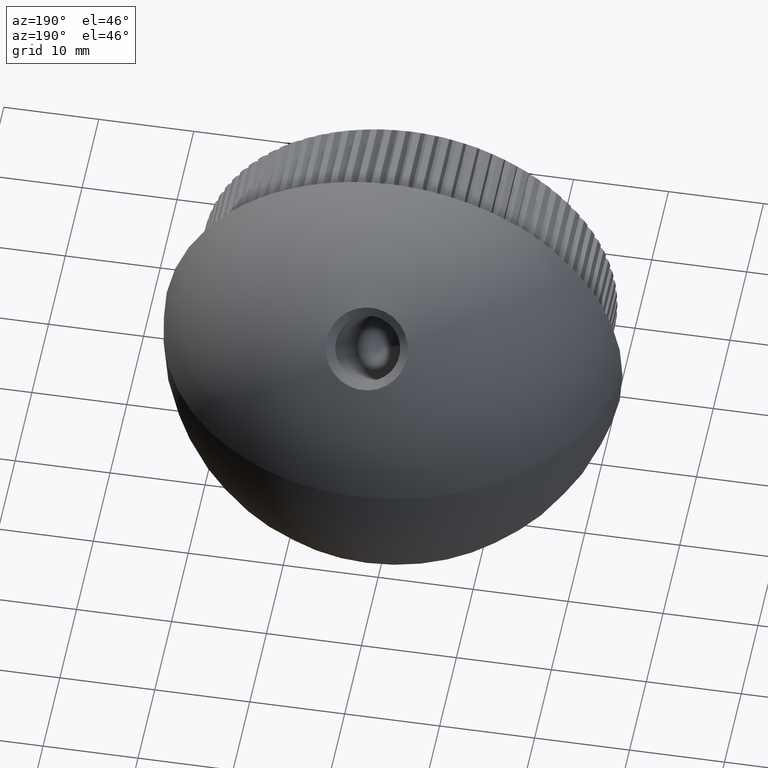
[diagram: clean part render]
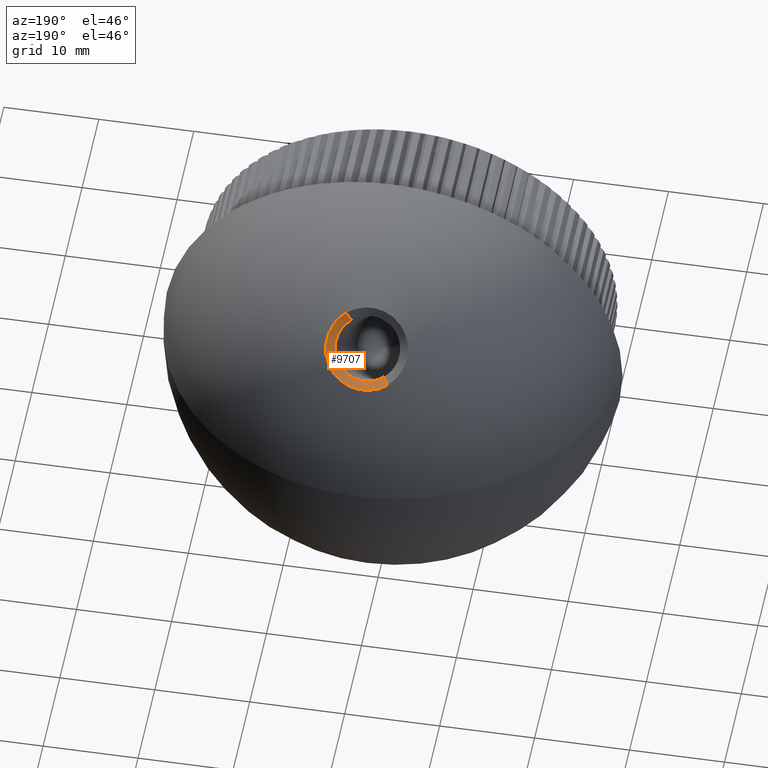
[diagram: same view with one face highlighted and labeled with its STEP entity id]
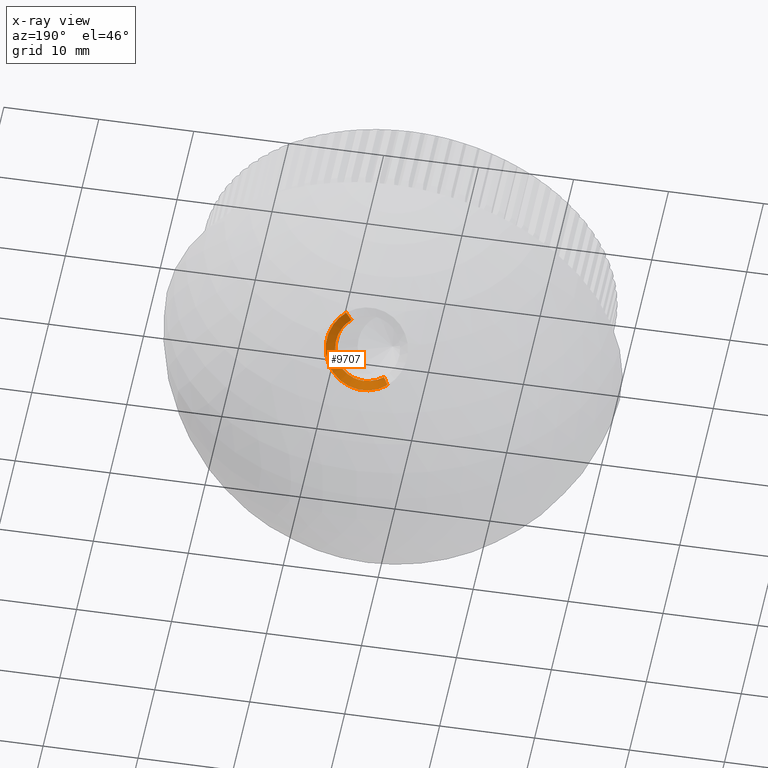
[diagram: x-ray of the same camera — body ghosted, the highlighted face saturated]
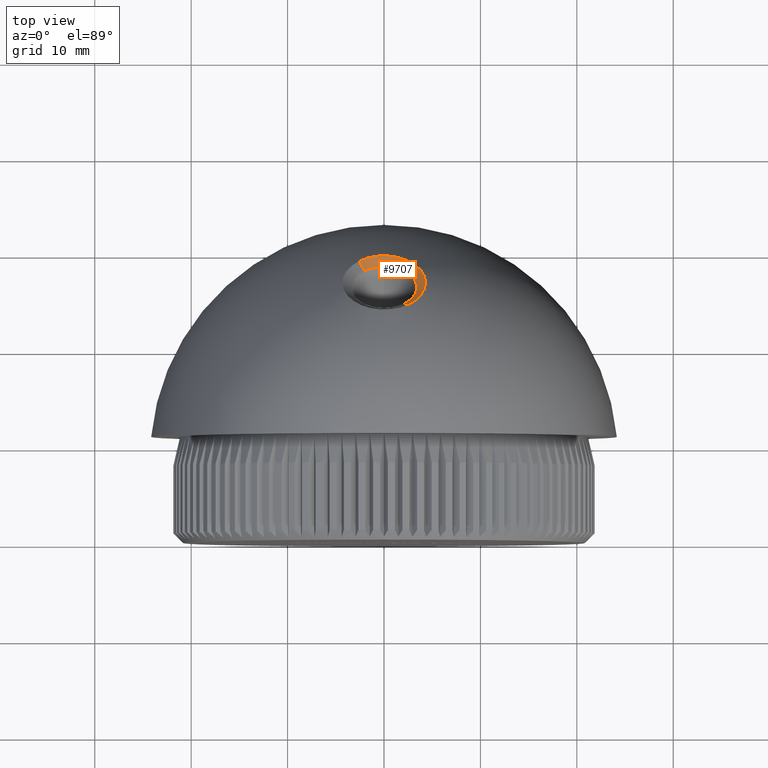
[diagram: same view with one face highlighted and labeled with its STEP entity id]
A machine part, auxiliary view. The second image highlights one B-rep face of the part: STEP entity #9707.
The next image is the same camera in x-ray: the body ghosted, the highlighted face saturated — about 0% of this face is hidden behind the body in this view.
A second angle (top view) of the same face is appended — the face is thin or edge-on in the first view.
In plain terms, the highlighted face is a freeform B-spline surface patch.
Its self-contained STEP definition (entity closure, byte-faithful):
#33 = CARTESIAN_POINT ( 'NONE',  ( 0.06396000808462339000, 29.58473959694004700, 12.41317968367604000 ) ) ;
#36 = CARTESIAN_POINT ( 'NONE',  ( 3.079080292632180100, 25.32932834300103400, 16.37230509585949200 ) ) ;
#48 = CARTESIAN_POINT ( 'NONE',  ( -4.297469636995954200, 26.50594554003951900, 15.94965158803822700 ) ) ;
#122 = CARTESIAN_POINT ( 'NONE',  ( 3.385849470600867500, 24.98035092369791200, 17.69957835155297200 ) ) ;
#141 = CARTESIAN_POINT ( 'NONE',  ( -4.255793566125117200, 27.19914719302342800, 15.15398651800472900 ) ) ;
#227 = CARTESIAN_POINT ( 'NONE',  ( -2.996833369946177300, 24.69869857706470400, 18.02247142657964900 ) ) ;
#292 = CARTESIAN_POINT ( 'NONE',  ( 3.297345926346658900, 24.90888121479206100, 17.78151869460589300 ) ) ;
#306 = CARTESIAN_POINT ( 'NONE',  ( -4.214221242293278100, 26.13899588294719900, 16.37070556956709000 ) ) ;
#327 = CARTESIAN_POINT ( 'NONE',  ( -3.121921139445993400, 27.13623545783694300, 14.23010164102567600 ) ) ;
#371 = CARTESIAN_POINT ( 'NONE',  ( 2.840588908055091000, 27.47780965314948900, 13.82472410012533500 ) ) ;
#391 = CARTESIAN_POINT ( 'NONE',  ( 1.189919767986780100, 24.01067838207724100, 18.81101161853137800 ) ) ;
#415 = CARTESIAN_POINT ( 'NONE',  ( -3.164146092213704400, 27.07003790373619600, 14.30864973450443100 ) ) ;
#451 = CARTESIAN_POINT ( 'NONE',  ( 0.6992119780003097600, 28.41896575709201000, 12.70703784332470800 ) ) ;
#470 = CARTESIAN_POINT ( 'NONE',  ( -0.06628398935088275500, 23.89953654291169400, 18.93836148333198100 ) ) ;
#491 = CARTESIAN_POINT ( 'NONE',  ( -3.380033784314886000, 26.51290716073970400, 14.96952536066268800 ) ) ;
#526 = CARTESIAN_POINT ( 'NONE',  ( 3.394187347646322900, 26.13468529171401400, 15.41796815645979500 ) ) ;
#537 = B_SPLINE_CURVE_WITH_KNOTS ( 'NONE', 1,
 ( #23861, #10696 ),
 .UNSPECIFIED., .F., .F.,
 ( 2, 2 ),
 ( 0.0000000000000000000, 1.000000000000000000 ),
 .UNSPECIFIED. ) ;
#547 = CARTESIAN_POINT ( 'NONE',  ( -0.3477376334742634000, 23.90959037195960900, 18.92684182038005900 ) ) ;
#607 = CARTESIAN_POINT ( 'NONE',  ( 3.400758611754723500, 26.28102109558672300, 15.24449497042483300 ) ) ;
#622 = CARTESIAN_POINT ( 'NONE',  ( -1.582365089852545600, 24.09737055403275000, 18.71167143934151900 ) ) ;
#645 = CARTESIAN_POINT ( 'NONE',  ( -3.354382038898047200, 25.90330202880476300, 15.69223201364289000 ) ) ;
#706 = CARTESIAN_POINT ( 'NONE',  ( -0.2773514941479015600, 23.90622271326661900, 18.93070048105126800 ) ) ;
#729 = CARTESIAN_POINT ( 'NONE',  ( -2.422398774767731100, 24.71982956851374200, 17.09407459369738900 ) ) ;
#784 = CARTESIAN_POINT ( 'NONE',  ( 3.542449535447930400, 28.35988227865063700, 13.82092545486723100 ) ) ;
#810 = CARTESIAN_POINT ( 'NONE',  ( -2.663342193606651700, 24.89582240655583300, 16.88570820699219900 ) ) ;
#834 = B_SPLINE_CURVE_WITH_KNOTS ( 'NONE', 3,
 ( #5625, #20869, #2089, #18725, #22518, #15336, #17077, #3911, #15020, #3988, #3760, #33, #1761, #13331, #3666, #7541, #17241, #9517, #20618, #11177, #2008, #24412, #13255, #13094, #20945, #5549, #1931, #18809, #7694, #15263, #9604, #20786, #15179, #9356, #7448, #17149, #20699, #5791, #16992, #13177, #22614, #11250, #24494, #1845, #22772, #9431, #15093, #18889, #22695, #7612, #3833, #22859, #5711, #18967, #11427, #122, #292, #9928, #11825, #17471 ),
 .UNSPECIFIED., .F., .F.,
 ( 4, 2, 2, 2, 2, 2, 2, 2, 2, 2, 2, 2, 2, 2, 2, 2, 2, 2, 2, 2, 2, 2, 2, 2, 2, 2, 2, 2, 2, 4 ),
 ( 0.0002891650422360298100, 0.03153918901903256900, 0.04716420100743086400, 0.06278921299582915200, 0.07841422498422742600, 0.09403923697262570000, 0.1252892609494221900, 0.1565392849262187100, 0.1877893089030152100, 0.2034143208914135100, 0.2112268268856125300, 0.2190393328798115300, 0.2502893568566075300, 0.2659143688450055800, 0.2737268748392045500, 0.2815393808334035200, 0.3127894048101989600, 0.3206019108043979800, 0.3284144167985969500, 0.3362269227927960300, 0.3440394287869950600, 0.3752894527637913300, 0.3831019587579903000, 0.3909144647521891600, 0.4065394767405873200, 0.4221644887289854300, 0.4377895007173834800, 0.4534145127057815900, 0.4690395246941797500, 0.5002895486709759700 ),
 .UNSPECIFIED. ) ;
#864 = CARTESIAN_POINT ( 'NONE',  ( 2.152703160636327200, 29.20050910128861000, 12.85489843861296500 ) ) ;
#867 = B_SPLINE_CURVE_WITH_KNOTS ( 'NONE', 3,
 ( #2090, #24497, #17079, #5554, #5794, #7451, #9359, #15341, #22774, #2012, #5627, #17153, #18895, #5867, #7544, #20787, #22697, #11346, #15181, #36, #13258, #3836, #3991, #19054, #17244, #20950, #9686, #22935, #10004, #5947, #8011, #15501, #6280, #4145, #7864, #526, #21438, #4075, #21354, #607, #23017, #17407, #17327, #9761, #19455, #23254, #2418, #15658, #8178, #6187, #23177, #19209, #8091, #2255, #21276, #15587, #13757, #11671, #15412, #13663, #21123, #11914, #371, #4230, #23332, #17565, #13586, #6026, #13845, #6109, #11827, #19293, #9930, #7931, #17652, #21205, #9846, #23093, #11756, #2337, #451, #4308, #17474, #2498 ),
 .UNSPECIFIED., .F., .F.,
 ( 4, 2, 1, 2, 2, 2, 1, 1, 2, 2, 1, 2, 2, 2, 2, 2, 2, 2, 1, 2, 2, 2, 1, 2, 2, 2, 2, 2, 2, 1, 1, 2, 2, 2, 2, 2, 2, 1, 2, 2, 2, 1, 2, 2, 2, 2, 4 ),
 ( 0.4997171925157318200, 0.5059405424642992000, 0.5121638924128666400, 0.5246105923100014000, 0.5308339422585688400, 0.5339456172328527200, 0.5370572922071364900, 0.5495039921042727000, 0.5619506920014089000, 0.5650623669756931200, 0.5681740419499773400, 0.5743973918985461100, 0.5868440917956839800, 0.5930674417442528500, 0.5961791167185372900, 0.5992907916928218400, 0.6241841914870994700, 0.6272958664613843500, 0.6304075414356692400, 0.6366308913842390100, 0.6397425663585237800, 0.6428542413328085500, 0.6490775912813783200, 0.6553009412299480900, 0.6584126162042329700, 0.6615242911785177400, 0.6739709910756579400, 0.6864176909727981400, 0.6879735284599407500, 0.6895293659470834700, 0.6926410409213691300, 0.6988643908699407900, 0.7113110907670839900, 0.7175344407156557500, 0.7237577906642275200, 0.7486511904585148000, 0.7548745404070867900, 0.7610978903556586700, 0.7735445902528024200, 0.7797679402013741900, 0.7859912901499461800, 0.7984379900470897100, 0.8108846899442332400, 0.8233313898413767700, 0.8482247896356638300, 0.8731181894299509000, 0.8980115892242378500 ),
 .UNSPECIFIED. ) ;
#886 = CARTESIAN_POINT ( 'NONE',  ( 0.6119193882780747900, 24.09893271487828100, 17.82890999452138600 ) ) ;
#913 = EDGE_CURVE ( 'NONE', #9810, #21978, #11018, .T. ) ;
#941 = CARTESIAN_POINT ( 'NONE',  ( 4.303633562992668100, 26.56146792202292400, 15.88593465675273300 ) ) ;
#969 = CARTESIAN_POINT ( 'NONE',  ( -2.796620333693215600, 25.01066633820378700, 16.74972146453576700 ) ) ;
#1023 = CARTESIAN_POINT ( 'NONE',  ( 4.302635430752396000, 26.93084421987452300, 15.46198760176323700 ) ) ;
#1048 = CARTESIAN_POINT ( 'NONE',  ( 3.355780749969846000, 25.91014435495170100, 15.68412201203198500 ) ) ;
#1100 = CARTESIAN_POINT ( 'NONE',  ( 0.3479106617544111500, 29.57122408502244700, 12.42872063671027200 ) ) ;
#1127 = CARTESIAN_POINT ( 'NONE',  ( 2.248266343396530400, 24.61283715641904000, 17.22073160505448900 ) ) ;
#1184 = CARTESIAN_POINT ( 'NONE',  ( -2.460003485469024500, 29.07202863970875800, 13.00257756397764200 ) ) ;
#1207 = CARTESIAN_POINT ( 'NONE',  ( 2.793405123858768900, 27.51857798723709100, 13.77632471783507900 ) ) ;
#1296 = CARTESIAN_POINT ( 'NONE',  ( 3.161060874669606100, 27.07508948614946200, 14.30265585283587600 ) ) ;
#1352 = CARTESIAN_POINT ( 'NONE',  ( -1.190878017441109300, 29.46898348282176600, 12.54626742738140200 ) ) ;
#1378 = CARTESIAN_POINT ( 'NONE',  ( 3.346311841097573800, 25.87442405817455100, 15.72645679513160900 ) ) ;
#1459 = CARTESIAN_POINT ( 'NONE',  ( 1.501647333487699600, 28.23740006364470300, 12.92273620123909500 ) ) ;
#1495 = EDGE_CURVE ( 'NONE', #6127, #9810, #18765, .T. ) ;
#1535 = CARTESIAN_POINT ( 'NONE',  ( -0.9390690601299241900, 28.37785171594877900, 12.75588070177043100 ) ) ;
#1616 = CARTESIAN_POINT ( 'NONE',  ( -2.030845928941643400, 28.02790597543404200, 13.17156967969909000 ) ) ;
#1695 = CARTESIAN_POINT ( 'NONE',  ( -1.657350252294270500, 28.18559343645923600, 12.98427679154049800 ) ) ;
#1761 = CARTESIAN_POINT ( 'NONE',  ( 0.3496317584474428200, 29.57563146170457800, 12.42365492636785300 ) ) ;
#1775 = CARTESIAN_POINT ( 'NONE',  ( -2.797177538968330000, 28.90145388548003100, 13.19862315796333600 ) ) ;
#1845 = CARTESIAN_POINT ( 'NONE',  ( 4.256179226310400100, 26.28457171904776500, 16.20367619151198500 ) ) ;
#1863 = CARTESIAN_POINT ( 'NONE',  ( -3.377510564399517400, 24.97521973305128600, 17.70546035278861700 ) ) ;
#1931 = CARTESIAN_POINT ( 'NONE',  ( 3.622988025002170000, 28.28278505394705500, 13.90950146017299900 ) ) ;
#1951 = CARTESIAN_POINT ( 'NONE',  ( -3.773529071653841000, 28.11513480237755400, 14.10208814569798400 ) ) ;
#2008 = CARTESIAN_POINT ( 'NONE',  ( 2.676282121115255200, 28.96680416818619400, 13.12351559193438700 ) ) ;
#2012 = CARTESIAN_POINT ( 'NONE',  ( 2.552221920504687000, 24.81015409323364600, 16.98713910072012100 ) ) ;
#2022 = CARTESIAN_POINT ( 'NONE',  ( -3.835628329963658000, 25.44069739640309500, 17.17170911280244600 ) ) ;
#2089 = CARTESIAN_POINT ( 'NONE',  ( -2.106197046934555700, 29.22442607509541900, 12.82740954978844500 ) ) ;
#2090 = CARTESIAN_POINT ( 'NONE',  ( 2.030720178744204900, 24.49900368575403700, 17.35547242169388600 ) ) ;
#2105 = CARTESIAN_POINT ( 'NONE',  ( -2.453533270569835600, 24.40515711915609000, 18.35893836631712600 ) ) ;
#2133 = CARTESIAN_POINT ( 'NONE',  ( -2.767087851739633100, 27.54236764446939000, 13.74808430243401200 ) ) ;
#2169 = CARTESIAN_POINT ( 'NONE',  ( 2.580012399387119500E-010, 28.46302475267731000, 12.65469721841554400 ) ) ;
#2187 = CARTESIAN_POINT ( 'NONE',  ( -4.082922056858719500, 25.82728665479395500, 16.72830125177726000 ) ) ;
#2255 = CARTESIAN_POINT ( 'NONE',  ( 3.257881226739439500, 26.89490294926617900, 14.51643871700763500 ) ) ;
#2274 = CARTESIAN_POINT ( 'NONE',  ( 2.098948135841334200, 24.25969512427199200, 18.52565021095816500 ) ) ;
#2337 = CARTESIAN_POINT ( 'NONE',  ( 0.8700351657614867600, 28.39293416065356000, 12.73798892527327500 ) ) ;
#2355 = CARTESIAN_POINT ( 'NONE',  ( 2.460584078767627400, 24.40837191937426100, 18.35525377353575000 ) ) ;
#2418 = CARTESIAN_POINT ( 'NONE',  ( 3.364689590016137500, 26.58545830132547400, 14.88347748202314900 ) ) ;
#2436 = CARTESIAN_POINT ( 'NONE',  ( 1.589726720751712100, 24.09928921296299000, 18.70947279717735500 ) ) ;
#2462 = CARTESIAN_POINT ( 'NONE',  ( -2.861643778331302900, 27.45249937456374000, 13.85476126647100300 ) ) ;
#2498 = CARTESIAN_POINT ( 'NONE',  ( 2.580012399387119500E-010, 28.46302475267731000, 12.65469721841554400 ) ) ;
#2521 = CARTESIAN_POINT ( 'NONE',  ( 1.121984580833538900, 23.99821708590918200, 18.82529056905070400 ) ) ;
#2544 = CARTESIAN_POINT ( 'NONE',  ( -2.858143357319177900, 25.07023782858619800, 16.67917653267990400 ) ) ;
#2595 = CARTESIAN_POINT ( 'NONE',  ( -2.030845928767440500, 28.02790597852343500, 13.17156968260500900 ) ) ;
#2596 = CARTESIAN_POINT ( 'NONE',  ( 2.342824006454413200, 24.35632549939452900, 18.41490517697061300 ) ) ;
#2618 = CARTESIAN_POINT ( 'NONE',  ( -0.3852638387044683400, 24.07693168012340500, 17.85494053115005600 ) ) ;
#2668 = CARTESIAN_POINT ( 'NONE',  ( 4.274655331003271100, 27.11537565309583500, 15.25015830627871000 ) ) ;
#2694 = CARTESIAN_POINT ( 'NONE',  ( -0.2187060329611119600, 24.06731160908494300, 17.86632234992561800 ) ) ;
#2701 = VERTEX_POINT ( 'NONE', #13713 ) ;
#2754 = CARTESIAN_POINT ( 'NONE',  ( 1.513542944603704800, 29.39882260542115200, 12.62692751954768000 ) ) ;
#2779 = CARTESIAN_POINT ( 'NONE',  ( 0.7766423957945189900, 24.12097014817156200, 17.80283589637194200 ) ) ;
#2840 = VERTEX_POINT ( 'NONE', #19651 ) ;
#2844 = CARTESIAN_POINT ( 'NONE',  ( 4.034017430022093900, 27.74442485250587600, 14.52787394049460400 ) ) ;
#2866 = CARTESIAN_POINT ( 'NONE',  ( 1.044506374615732400, 24.16924077668754100, 17.74572144913223000 ) ) ;
#2921 = CARTESIAN_POINT ( 'NONE',  ( 4.103557481287475100, 27.61369097239770600, 14.67800759506183700 ) ) ;
#2945 = CARTESIAN_POINT ( 'NONE',  ( 3.354263992093708100, 26.62571934888255100, 14.83573342709216400 ) ) ;
#3001 = CARTESIAN_POINT ( 'NONE',  ( -0.9163676336297751400, 29.51567419362907800, 12.49258785068191500 ) ) ;
#3031 = CARTESIAN_POINT ( 'NONE',  ( 2.989284943643750300, 25.21566721743994300, 16.50693877088706800 ) ) ;
#3109 = ORIENTED_EDGE ( 'NONE', *, *, #1495, .F. ) ;
#3114 = CARTESIAN_POINT ( 'NONE',  ( 2.075525506751227500, 24.52061323865917700, 17.32989523888391400 ) ) ;
#3192 = CARTESIAN_POINT ( 'NONE',  ( 3.096052575782843000, 27.17401407770603300, 14.18527231398017600 ) ) ;
#3246 = CARTESIAN_POINT ( 'NONE',  ( -2.518035395938840200, 29.04503519271050400, 13.03360312421326500 ) ) ;
#3275 = CARTESIAN_POINT ( 'NONE',  ( 3.379025175703859000, 26.01765673775634400, 15.55669284497981100 ) ) ;
#3327 = ORIENTED_EDGE ( 'NONE', *, *, #913, .F. ) ;
#3353 = CARTESIAN_POINT ( 'NONE',  ( -2.688185613634098000, 28.96057566196469300, 13.13067555740432200 ) ) ;
#3384 = CARTESIAN_POINT ( 'NONE',  ( -0.3623973698595693800, 28.45366397326826700, 12.66583502694737700 ) ) ;
#3436 = CARTESIAN_POINT ( 'NONE',  ( -2.575412050368020500, 29.01728090991232300, 13.06550255681497500 ) ) ;
#3513 = CARTESIAN_POINT ( 'NONE',  ( 2.239546669485441100, 27.91928743910433000, 13.30056481572437500 ) ) ;
#3601 = CARTESIAN_POINT ( 'NONE',  ( -1.800189426368418600, 28.13005350470524800, 13.05024725489697200 ) ) ;
#3666 = CARTESIAN_POINT ( 'NONE',  ( 1.179713620839066800, 29.47703723644549700, 12.53701566875182700 ) ) ;
#3686 = CARTESIAN_POINT ( 'NONE',  ( -3.509075354382528800, 28.39058723342587200, 13.78564860662537600 ) ) ;
#3760 = CARTESIAN_POINT ( 'NONE',  ( -0.3609526675612286800, 29.57049862251808700, 12.42955544415942400 ) ) ;
#3772 = CARTESIAN_POINT ( 'NONE',  ( -4.037820660569187800, 27.73778162630327100, 14.53550326026251400 ) ) ;
#3833 = CARTESIAN_POINT ( 'NONE',  ( 3.962663595058698400, 25.61803578517341500, 16.96832056525412500 ) ) ;
#3836 = CARTESIAN_POINT ( 'NONE',  ( 3.168099175856391900, 25.46500639395074800, 16.21158304189935300 ) ) ;
#3850 = CARTESIAN_POINT ( 'NONE',  ( -2.945653104827804300, 24.66664013581771200, 18.05922068075705800 ) ) ;
#3911 = CARTESIAN_POINT ( 'NONE',  ( -0.9166566047195821000, 29.51563179337599500, 12.49263779116108500 ) ) ;
#3931 = CARTESIAN_POINT ( 'NONE',  ( -4.198790627334193300, 26.09393164998668600, 16.42240779965907300 ) ) ;
#3988 = CARTESIAN_POINT ( 'NONE',  ( -0.4997583743947445800, 29.56132478462944500, 12.44010139627912500 ) ) ;
#3991 = CARTESIAN_POINT ( 'NONE',  ( 3.184749878192484100, 25.49319657799957300, 16.17818738758710900 ) ) ;
#4008 = CARTESIAN_POINT ( 'NONE',  ( -1.968118398283071000, 24.21357833058513300, 18.57850103521629500 ) ) ;
#4035 = CARTESIAN_POINT ( 'NONE',  ( -3.184030939492424200, 27.03657130922572100, 14.34835830643764300 ) ) ;
#4075 = CARTESIAN_POINT ( 'NONE',  ( 3.397647126238394900, 26.18123697398526100, 15.36278256677465700 ) ) ;
#4088 = CARTESIAN_POINT ( 'NONE',  ( -2.093827163132422800, 24.25781460796478200, 18.52780535086313000 ) ) ;
#4115 = EDGE_CURVE ( 'NONE', #2701, #6127, #867, .T. ) ;
#4145 = CARTESIAN_POINT ( 'NONE',  ( 3.387429728019193000, 26.07279636552538800, 15.49133125654857100 ) ) ;
#4162 = CARTESIAN_POINT ( 'NONE',  ( -1.317582342986548100, 24.03505938321297800, 18.78307423574121100 ) ) ;
#4189 = CARTESIAN_POINT ( 'NONE',  ( -2.815132521899609100, 27.49770164657086000, 13.80110548636349900 ) ) ;
#4230 = CARTESIAN_POINT ( 'NONE',  ( 2.715993840542591600, 27.58757061381432900, 13.69442318949950600 ) ) ;
#4249 = CARTESIAN_POINT ( 'NONE',  ( 3.960898503419620500, 25.61824012823605300, 16.96808393267541200 ) ) ;
#4308 = CARTESIAN_POINT ( 'NONE',  ( 0.3568352675688731800, 28.45374915402337000, 12.66570188728343100 ) ) ;
#4330 = CARTESIAN_POINT ( 'NONE',  ( 0.8110752720553291400, 23.95134809853148600, 18.87899515379002600 ) ) ;
#4354 = CARTESIAN_POINT ( 'NONE',  ( -3.312918382559443500, 26.76027865225195200, 14.67613336190715100 ) ) ;
#4404 = CARTESIAN_POINT ( 'NONE',  ( 3.107233362972067900, 24.77159852848965100, 17.93890202966293400 ) ) ;
#4428 = CARTESIAN_POINT ( 'NONE',  ( -1.038981990053627200, 24.16716841364478100, 17.74817381205044200 ) ) ;
#4489 = CARTESIAN_POINT ( 'NONE',  ( 3.773755775437153100, 25.36735068578870800, 17.25582173152914200 ) ) ;
#4512 = CARTESIAN_POINT ( 'NONE',  ( 0.05859464695400505600, 24.06220006807204100, 17.87236994721294200 ) ) ;
#4567 = CARTESIAN_POINT ( 'NONE',  ( 3.767088818880837600, 28.12278739729865900, 14.09329760242117000 ) ) ;
#4588 = CARTESIAN_POINT ( 'NONE',  ( -3.219595728835975100, 25.55615329569473500, 16.10359953742307900 ) ) ;
#4643 = CARTESIAN_POINT ( 'NONE',  ( 0.4887376540707546500, 29.56215985732300000, 12.43914220676501800 ) ) ;
#4667 = CARTESIAN_POINT ( 'NONE',  ( -1.350501898662124900, 24.24295141723197500, 17.65850150997901800 ) ) ;
#4718 = CARTESIAN_POINT ( 'NONE',  ( 3.834038679730930700, 28.04053825674677800, 14.18777520632860200 ) ) ;
#4746 = CARTESIAN_POINT ( 'NONE',  ( 1.556574407075809900, 24.30706963578544600, 17.58262638752913900 ) ) ;
#4813 = CARTESIAN_POINT ( 'NONE',  ( 1.711666850254978100, 29.34624786603386700, 12.68736747560965500 ) ) ;
#4837 = CARTESIAN_POINT ( 'NONE',  ( 2.862855824215917000, 25.07495379031902200, 16.67359170041292100 ) ) ;
#4892 = CARTESIAN_POINT ( 'NONE',  ( 2.620570232912740500, 28.99532587435026100, 13.09073654825985500 ) ) ;
#4921 = CARTESIAN_POINT ( 'NONE',  ( 3.392851115616604600, 26.41131457934712800, 15.08999449740973200 ) ) ;
#5003 = CARTESIAN_POINT ( 'NONE',  ( 3.118571196518007800, 27.14123719708684100, 14.22416651396108600 ) ) ;
#5087 = CARTESIAN_POINT ( 'NONE',  ( 3.048440144537855700, 27.23896756398178100, 14.10819255752055500 ) ) ;
#5166 = CARTESIAN_POINT ( 'NONE',  ( 3.401247054555203200, 26.30403276822816100, 15.21720154983406700 ) ) ;
#5251 = CARTESIAN_POINT ( 'NONE',  ( -3.570003079485945200, 28.33293765265749500, 13.85188077466965400 ) ) ;
#5300 = CARTESIAN_POINT ( 'NONE',  ( -2.101764467018711000, 29.22081828619516800, 12.83155398905522100 ) ) ;
#5321 = CARTESIAN_POINT ( 'NONE',  ( -1.358912042801798000, 28.28018484376401900, 12.87191069417705900 ) ) ;
#5408 = CARTESIAN_POINT ( 'NONE',  ( 0.6052310436132846100, 28.42911469746881900, 12.69497482516769400 ) ) ;
#5492 = CARTESIAN_POINT ( 'NONE',  ( -1.046560408706105100, 28.35664007777572200, 12.78108146574562000 ) ) ;
#5549 = CARTESIAN_POINT ( 'NONE',  ( 3.543274201555111500, 28.36104885134712500, 13.81958623420498700 ) ) ;
#5554 = CARTESIAN_POINT ( 'NONE',  ( 2.167981716202022300, 24.56858424014240700, 17.27311236199720700 ) ) ;
#5567 = CARTESIAN_POINT ( 'NONE',  ( -0.2839567328345649600, 28.45651893086680300, 12.66241433456304900 ) ) ;
#5625 = CARTESIAN_POINT ( 'NONE',  ( -2.575412051545741500, 29.01728091067991500, 13.06550255539182900 ) ) ;
#5627 = CARTESIAN_POINT ( 'NONE',  ( 2.580164670507998400, 24.83097222555909100, 16.96249066665565400 ) ) ;
#5642 = CARTESIAN_POINT ( 'NONE',  ( -3.145746832914146900, 24.79872920544261600, 17.90779938728154300 ) ) ;
#5711 = CARTESIAN_POINT ( 'NONE',  ( 3.775083507062249900, 25.36600535241573700, 17.25736558641271800 ) ) ;
#5727 = CARTESIAN_POINT ( 'NONE',  ( -3.955078335677167300, 25.61007944608847000, 16.97744340391231800 ) ) ;
#5791 = CARTESIAN_POINT ( 'NONE',  ( 4.274501631833540900, 27.11607071839651800, 15.24936027048717700 ) ) ;
#5794 = CARTESIAN_POINT ( 'NONE',  ( 2.269044205354612000, 24.62345159711324500, 17.20816419247249800 ) ) ;
#5806 = CARTESIAN_POINT ( 'NONE',  ( -3.870958665093136000, 27.99219435762423900, 14.24330446138781000 ) ) ;
#5867 = CARTESIAN_POINT ( 'NONE',  ( 2.869656593373501000, 25.08253857910910900, 16.66460805863664200 ) ) ;
#5883 = CARTESIAN_POINT ( 'NONE',  ( -4.201268940562016500, 27.38119995879890900, 14.94496851128316100 ) ) ;
#5907 = CARTESIAN_POINT ( 'NONE',  ( -3.392972215698298200, 26.11835447536369900, 15.43732826140255700 ) ) ;
#5947 = CARTESIAN_POINT ( 'NONE',  ( 3.365959932215299300, 25.95333382572943400, 15.63293315001520700 ) ) ;
#5968 = CARTESIAN_POINT ( 'NONE',  ( -4.085110426103784500, 27.65043823996243700, 14.63580855970124400 ) ) ;
#5991 = CARTESIAN_POINT ( 'NONE',  ( -3.052451604776179400, 27.23369462454176600, 14.11445009006079200 ) ) ;
#6026 = CARTESIAN_POINT ( 'NONE',  ( 2.454230839565160000, 27.78727659418041200, 13.45732546611631100 ) ) ;
#6049 = CARTESIAN_POINT ( 'NONE',  ( 2.518432819473341000, 24.43532563582271800, 18.32436091731733200 ) ) ;
#6076 = CARTESIAN_POINT ( 'NONE',  ( -3.390736308649518400, 26.44169627926644800, 15.05397049213866200 ) ) ;
#6109 = CARTESIAN_POINT ( 'NONE',  ( 2.330516787441151600, 27.86573513394415300, 13.36415848697676300 ) ) ;
#6125 = CARTESIAN_POINT ( 'NONE',  ( 4.150394449943982000, 25.96616614847435400, 16.56898779131017800 ) ) ;
#6127 = VERTEX_POINT ( 'NONE', #2169 ) ;
#6187 = CARTESIAN_POINT ( 'NONE',  ( 3.297620780652502000, 26.80007122971744600, 14.62893091137153300 ) ) ;
#6202 = CARTESIAN_POINT ( 'NONE',  ( 3.872527197579167100, 25.49164240656699600, 17.11328077803216600 ) ) ;
#6232 = CARTESIAN_POINT ( 'NONE',  ( -3.398725860999785900, 26.33437068754472300, 15.18122878853487400 ) ) ;
#6280 = CARTESIAN_POINT ( 'NONE',  ( 3.381016051799233100, 26.02939168474169300, 15.54278118512118600 ) ) ;
#6293 = CARTESIAN_POINT ( 'NONE',  ( 2.851133190708260700, 24.61008392217441500, 18.12405062232051400 ) ) ;
#6317 = CARTESIAN_POINT ( 'NONE',  ( -0.5519974046142076500, 24.09196018367806900, 17.83715961634354800 ) ) ;
#6371 = CARTESIAN_POINT ( 'NONE',  ( -0.5589816065962008900, 23.92430748514651000, 18.90997886017364100 ) ) ;
#6395 = CARTESIAN_POINT ( 'NONE',  ( 0.6395749037841996800, 24.10228682661446300, 17.82494153025244200 ) ) ;
#6447 = CARTESIAN_POINT ( 'NONE',  ( 4.197902854047033100, 27.39068855594876700, 14.93407384080637200 ) ) ;
#6471 = CARTESIAN_POINT ( 'NONE',  ( -2.441944835160521100, 24.73278634552953300, 17.07873560186622800 ) ) ;
#6533 = CARTESIAN_POINT ( 'NONE',  ( -0.5000003808302514500, 29.56129913473504400, 12.44013181368000400 ) ) ;
#6561 = CARTESIAN_POINT ( 'NONE',  ( -1.651091276655044100, 24.33981571615670300, 17.54387432003324700 ) ) ;
#6623 = CARTESIAN_POINT ( 'NONE',  ( 1.967314608261842700, 29.26686073164205800, 12.77862721206236600 ) ) ;
#6651 = CARTESIAN_POINT ( 'NONE',  ( -2.113563578015989800, 24.53876411791860700, 17.30841188921230500 ) ) ;
#6709 = CARTESIAN_POINT ( 'NONE',  ( 4.163416562105598300, 27.48066089905864100, 14.83076581578253100 ) ) ;
#6736 = CARTESIAN_POINT ( 'NONE',  ( 3.341244934641711700, 25.85663101583950800, 15.74754410957445200 ) ) ;
#6789 = CARTESIAN_POINT ( 'NONE',  ( 3.731843468781789400, 28.16362517856316900, 14.04638641007828800 ) ) ;
#6811 = CARTESIAN_POINT ( 'NONE',  ( 1.847438197338090900, 24.41616599464639500, 17.45351601250013800 ) ) ;
#6898 = CARTESIAN_POINT ( 'NONE',  ( 3.310264048821116600, 26.76763087466996500, 14.66741232099162700 ) ) ;
#6979 = CARTESIAN_POINT ( 'NONE',  ( 3.165527614004079600, 25.46050167286066200, 16.21692163756988200 ) ) ;
#7057 = CARTESIAN_POINT ( 'NONE',  ( 3.101012642227670500, 25.36125836965645100, 16.33448800338216200 ) ) ;
#7130 = CARTESIAN_POINT ( 'NONE',  ( -1.985601462120443400, 28.04940833848305100, 13.14603199529286400 ) ) ;
#7166 = CARTESIAN_POINT ( 'NONE',  ( -0.7204816076509351600, 28.41391974990795100, 12.71303092278218300 ) ) ;
#7188 = CARTESIAN_POINT ( 'NONE',  ( -2.342541316193028400, 29.12419888270225600, 12.94261314566400000 ) ) ;
#7215 = CARTESIAN_POINT ( 'NONE',  ( -3.549911954555056600, 28.35228641703570300, 13.82965172209656800 ) ) ;
#7300 = CARTESIAN_POINT ( 'NONE',  ( -2.850421302067420300, 28.87109279372019100, 13.23351567715116200 ) ) ;
#7380 = CARTESIAN_POINT ( 'NONE',  ( -1.916789381439395500, 28.08058152931262400, 13.10900749696404000 ) ) ;
#7448 = CARTESIAN_POINT ( 'NONE',  ( 4.213395710869972900, 27.34567747918442400, 14.98575325050948900 ) ) ;
#7451 = CARTESIAN_POINT ( 'NONE',  ( 2.366762848039446700, 24.68310074872652700, 17.13755350036549900 ) ) ;
#7471 = CARTESIAN_POINT ( 'NONE',  ( 2.363071978292520000, 27.84582782670443300, 13.38779716257816500 ) ) ;
#7541 = CARTESIAN_POINT ( 'NONE',  ( 1.713896604310974500, 29.35188014620301200, 12.68088787787496900 ) ) ;
#7544 = CARTESIAN_POINT ( 'NONE',  ( 2.928763095934679800, 25.14644019626632600, 16.58892914221623400 ) ) ;
#7556 = CARTESIAN_POINT ( 'NONE',  ( -2.511014369633733300, 24.43182453637275100, 18.32837370965268100 ) ) ;
#7612 = CARTESIAN_POINT ( 'NONE',  ( 4.016064186618967500, 25.70365639427235700, 16.87011411835689500 ) ) ;
#7627 = CARTESIAN_POINT ( 'NONE',  ( -3.170009175472046500, 24.81592327660679600, 17.88808800127362300 ) ) ;
#7694 = CARTESIAN_POINT ( 'NONE',  ( 3.766282476442891300, 28.12374206268716700, 14.09219964744867700 ) ) ;
#7708 = CARTESIAN_POINT ( 'NONE',  ( -4.148124151866402300, 27.51703099770741500, 14.78900332506112400 ) ) ;
#7797 = CARTESIAN_POINT ( 'NONE',  ( -2.155536688146455000, 24.28084715596996500, 18.50140908443566800 ) ) ;
#7854 = EDGE_CURVE ( 'NONE', #21978, #2840, #834, .T. ) ;
#7864 = CARTESIAN_POINT ( 'NONE',  ( 3.392647847856622400, 26.11887854652637100, 15.43670570985982200 ) ) ;
#7873 = CARTESIAN_POINT ( 'NONE',  ( -3.839522231679924200, 28.03349142218604200, 14.19586950553327200 ) ) ;
#7894 = CARTESIAN_POINT ( 'NONE',  ( -3.323131944011725700, 25.79770877603884200, 15.81737339453608700 ) ) ;
#7931 = CARTESIAN_POINT ( 'NONE',  ( 1.988828775538237200, 28.05056776296214200, 13.14466107189206700 ) ) ;
#7937 = FACE_OUTER_BOUND ( 'NONE', #19706, .T. ) ;
#7948 = CARTESIAN_POINT ( 'NONE',  ( 3.385745952714477500, 24.98026097073974900, 17.69968190767918200 ) ) ;
#8011 = CARTESIAN_POINT ( 'NONE',  ( 3.368376959449074400, 25.96465021966479700, 15.61952006246638500 ) ) ;
#8034 = CARTESIAN_POINT ( 'NONE',  ( 4.243616769265772200, 26.23799293734275700, 16.25712068380065400 ) ) ;
#8057 = CARTESIAN_POINT ( 'NONE',  ( -2.119773730540781100, 27.98397401344901400, 13.22374503569937200 ) ) ;
#8091 = CARTESIAN_POINT ( 'NONE',  ( 3.280251400772102400, 26.84330653546121700, 14.57764410152485700 ) ) ;
#8114 = CARTESIAN_POINT ( 'NONE',  ( 0.7059357419466012500, 23.93896523507764900, 18.89318375560238300 ) ) ;
#8139 = CARTESIAN_POINT ( 'NONE',  ( -2.030845928941643400, 28.02790597543404200, 13.17156967969909000 ) ) ;
#8178 = CARTESIAN_POINT ( 'NONE',  ( 3.317916603934340200, 26.74717531346166100, 14.69167724245991600 ) ) ;
#8192 = CARTESIAN_POINT ( 'NONE',  ( 3.155685737625922600, 24.80532556298819100, 17.90023760967722000 ) ) ;
#8220 = CARTESIAN_POINT ( 'NONE',  ( 0.5290202763090595700, 24.08979218295798200, 17.83972468289377000 ) ) ;
#8273 = CARTESIAN_POINT ( 'NONE',  ( 3.932541220051465100, 25.57579518119253900, 17.01676589349179000 ) ) ;
#8298 = CARTESIAN_POINT ( 'NONE',  ( 1.506762031566884800, 24.29079301160464200, 17.60188785076875500 ) ) ;
#8355 = CARTESIAN_POINT ( 'NONE',  ( 3.926251124524966900, 27.91516843961652200, 14.33177529703302800 ) ) ;
#8378 = CARTESIAN_POINT ( 'NONE',  ( -0.2742091531256520300, 24.06992177654519000, 17.86323418990466300 ) ) ;
#8438 = CARTESIAN_POINT ( 'NONE',  ( 3.865871542091768200, 27.99899983156614500, 14.23548759689367500 ) ) ;
#8465 = CARTESIAN_POINT ( 'NONE',  ( -0.4407859782852754400, 24.08132854344361500, 17.84973843160239300 ) ) ;
#8511 = CARTESIAN_POINT ( 'NONE',  ( 4.241409087158142900, 27.25378156762819500, 15.09126227405764800 ) ) ;
#8536 = CARTESIAN_POINT ( 'NONE',  ( -3.084377604988481500, 25.33821753846839500, 16.36178077623889800 ) ) ;
#8599 = CARTESIAN_POINT ( 'NONE',  ( 1.904310210318448600, 29.28768933249196800, 12.75468405252744300 ) ) ;
#8627 = CARTESIAN_POINT ( 'NONE',  ( 3.240866384361652800, 25.59516919318065900, 16.05737486740110100 ) ) ;
#8682 = CARTESIAN_POINT ( 'NONE',  ( 2.945441920993516800, 28.81435087575205900, 13.29872455768206900 ) ) ;
#8715 = CARTESIAN_POINT ( 'NONE',  ( 2.599834030269050800, 24.84419827916377000, 16.94683334179803000 ) ) ;
#8794 = CARTESIAN_POINT ( 'NONE',  ( 2.761401911318393400, 27.54787320230496300, 13.74154907405039500 ) ) ;
#8869 = CARTESIAN_POINT ( 'NONE',  ( 3.312963656025636400, 25.76833700432626600, 15.85218040222234000 ) ) ;
#8947 = CARTESIAN_POINT ( 'NONE',  ( 3.023338282129913500, 27.27115182070690500, 14.06999791864871900 ) ) ;
#9033 = CARTESIAN_POINT ( 'NONE',  ( 2.196907131491050900, 27.94301187771671700, 13.27239095547571800 ) ) ;
#9089 = CARTESIAN_POINT ( 'NONE',  ( -2.546890780796358100, 29.03125762966163100, 13.04943849652021500 ) ) ;
#9112 = CARTESIAN_POINT ( 'NONE',  ( 1.349738056109496300, 28.28276659240929200, 12.86884367916730000 ) ) ;
#9199 = CARTESIAN_POINT ( 'NONE',  ( -3.006444376524519200, 28.77763957924656800, 13.34091367760664900 ) ) ;
#9285 = CARTESIAN_POINT ( 'NONE',  ( -2.008355429143920300, 28.03873431417915900, 13.15870930585702900 ) ) ;
#9356 = CARTESIAN_POINT ( 'NONE',  ( 4.197814767405235500, 27.39092313882457600, 14.93380420142927500 ) ) ;
#9359 = CARTESIAN_POINT ( 'NONE',  ( 2.461696306867146700, 24.74592407301254600, 17.06318148362590000 ) ) ;
#9369 = CARTESIAN_POINT ( 'NONE',  ( 2.480146913623965800, 27.76899544322622400, 13.47902780314998600 ) ) ;
#9431 = CARTESIAN_POINT ( 'NONE',  ( 4.216959186712416300, 26.14732504207746500, 16.36114826640227400 ) ) ;
#9450 = CARTESIAN_POINT ( 'NONE',  ( -2.336458647236819600, 24.35362274351658500, 18.41800280320084200 ) ) ;
#9517 = CARTESIAN_POINT ( 'NONE',  ( 2.333144246642447700, 29.12951387485408700, 12.93650383283000800 ) ) ;
#9540 = CARTESIAN_POINT ( 'NONE',  ( -4.283422465872214400, 26.41315628457245900, 16.05613082001445600 ) ) ;
#9604 = CARTESIAN_POINT ( 'NONE',  ( 3.866210044264943400, 27.99852556466423100, 14.23603261336623800 ) ) ;
#9622 = CARTESIAN_POINT ( 'NONE',  ( -3.769101213353347900, 25.35891843821503100, 17.26549370352237700 ) ) ;
#9686 = CARTESIAN_POINT ( 'NONE',  ( 3.233469649070983600, 25.58397139895974700, 16.07063741658992100 ) ) ;
#9699 = CARTESIAN_POINT ( 'NONE',  ( -3.930725691119788300, 27.90865375453818600, 14.33925777106789900 ) ) ;
#9707 = ADVANCED_FACE ( 'NONE', ( #7937 ), #13464, .T. ) ;
#9722 = CARTESIAN_POINT ( 'NONE',  ( -2.247704982293978700, 27.91464736096255100, 13.30607503060191600 ) ) ;
#9761 = CARTESIAN_POINT ( 'NONE',  ( 3.390383362424910000, 26.43045430416699300, 15.06728680127466200 ) ) ;
#9782 = CARTESIAN_POINT ( 'NONE',  ( -4.309860234423155100, 26.64598196457091500, 15.78894309964560300 ) ) ;
#9806 = CARTESIAN_POINT ( 'NONE',  ( -3.310964104086365500, 25.76278714899308800, 15.85875714065194200 ) ) ;
#9810 = VERTEX_POINT ( 'NONE', #14694 ) ;
#9846 = CARTESIAN_POINT ( 'NONE',  ( 1.613315372667509800, 28.20074347744900600, 12.96628454389212800 ) ) ;
#9863 = CARTESIAN_POINT ( 'NONE',  ( 0.3552470727237142500, 23.90886246950395800, 18.92767585240903100 ) ) ;
#9928 = CARTESIAN_POINT ( 'NONE',  ( 3.013603038541913900, 24.70146052428119900, 18.01931095185981500 ) ) ;
#9930 = CARTESIAN_POINT ( 'NONE',  ( 2.129753073636516400, 27.97942583000532900, 13.22914863369084200 ) ) ;
#9946 = CARTESIAN_POINT ( 'NONE',  ( 0.4956137096120545300, 23.91801256483939800, 18.91719168815401300 ) ) ;
#10004 = CARTESIAN_POINT ( 'NONE',  ( 3.332835928000808400, 25.81062076044094100, 15.80207765320798300 ) ) ;
#10021 = CARTESIAN_POINT ( 'NONE',  ( 1.391321149026639100, 24.05232685425433200, 18.76328734004440700 ) ) ;
#10042 = CARTESIAN_POINT ( 'NONE',  ( -2.891384302736134800, 27.42198476312535500, 13.89098097335761800 ) ) ;
#10107 = CARTESIAN_POINT ( 'NONE',  ( 2.956396425304499000, 24.67327292815097900, 18.05161743210636900 ) ) ;
#10129 = CARTESIAN_POINT ( 'NONE',  ( -3.182095468499559900, 25.48838655668822300, 16.18388644894238100 ) ) ;
#10183 = CARTESIAN_POINT ( 'NONE',  ( 4.201326353991918300, 26.10109338858571700, 16.41419122951415200 ) ) ;
#10211 = CARTESIAN_POINT ( 'NONE',  ( -2.697515584243347100, 24.92417463893824700, 16.85213737051588000 ) ) ;
#10262 = CARTESIAN_POINT ( 'NONE',  ( 2.996723661825571000, 28.78226516239788800, 13.33559707333176400 ) ) ;
#10284 = CARTESIAN_POINT ( 'NONE',  ( -0.6072579467129839400, 24.09815671595001500, 17.82982814912340800 ) ) ;
#10333 = ORIENTED_EDGE ( 'NONE', *, *, #11017, .T. ) ;
#10341 = CARTESIAN_POINT ( 'NONE',  ( 3.286944796914953700, 28.58034154374334100, 13.56762943034268100 ) ) ;
#10366 = CARTESIAN_POINT ( 'NONE',  ( 0.9383134307528869800, 24.14827161101006700, 17.77053276768922900 ) ) ;
#10424 = CARTESIAN_POINT ( 'NONE',  ( 4.313282719159895300, 26.79239476585033900, 15.62090459796579500 ) ) ;
#10448 = CARTESIAN_POINT ( 'NONE',  ( -1.501881554329390400, 24.28922934056780000, 17.60373825941755400 ) ) ;
#10512 = CARTESIAN_POINT ( 'NONE',  ( 3.501864743636610800, 28.39769313205830400, 13.77748501312998600 ) ) ;
#10542 = CARTESIAN_POINT ( 'NONE',  ( 2.942752059787846300, 27.36651975151282900, 13.95681303350314700 ) ) ;
#10615 = CARTESIAN_POINT ( 'NONE',  ( 2.488421816757837600, 24.76415313954114300, 17.04160126722544200 ) ) ;
#10696 = CARTESIAN_POINT ( 'NONE',  ( 2.575252603285166100, 24.46320766767800200, 18.29240325476833800 ) ) ;
#10699 = CARTESIAN_POINT ( 'NONE',  ( 3.053688473965020300, 25.29604274537474900, 16.41173819541753100 ) ) ;
#10734 = CARTESIAN_POINT ( 'NONE',  ( -0.9797249401577102800, 28.37059433694224000, 12.76450704143191200 ) ) ;
#10753 = CARTESIAN_POINT ( 'NONE',  ( -1.527557636096923000, 29.39534346494970800, 12.63092720220893200 ) ) ;
#10779 = CARTESIAN_POINT ( 'NONE',  ( 2.331271861451961900, 24.66181009629006100, 17.16275941163364400 ) ) ;
#10846 = ORIENTED_EDGE ( 'NONE', *, *, #4115, .F. ) ;
#10870 = CARTESIAN_POINT ( 'NONE',  ( 1.800196527145651700, 24.39671946115800000, 17.47653101057485300 ) ) ;
#10913 = CARTESIAN_POINT ( 'NONE',  ( -1.787522096785762100, 29.32408261341937500, 12.71284808223842900 ) ) ;
#10941 = CARTESIAN_POINT ( 'NONE',  ( 1.649264958504093000, 28.18749329559827300, 12.98201940278908100 ) ) ;
#11017 = EDGE_CURVE ( 'NONE', #2701, #2840, #537, .T. ) ;
#11018 = B_SPLINE_CURVE_WITH_KNOTS ( 'NONE', 1,
 ( #2595, #19870 ),
 .UNSPECIFIED., .F., .F.,
 ( 2, 2 ),
 ( 0.0000000000000000000, 1.000000000000000000 ),
 .UNSPECIFIED. ) ;
#11033 = CARTESIAN_POINT ( 'NONE',  ( -1.256414287488668300, 28.30778834640428300, 12.83911840626189100 ) ) ;
#11112 = CARTESIAN_POINT ( 'NONE',  ( -1.204558395247027100, 28.32080180965279900, 12.82365838937745700 ) ) ;
#11177 = CARTESIAN_POINT ( 'NONE',  ( 2.620546722690792600, 28.99533786439683100, 13.09072206458341500 ) ) ;
#11193 = CARTESIAN_POINT ( 'NONE',  ( -1.559669739368666300, 28.21947430146601800, 12.94403059099804500 ) ) ;
#11250 = CARTESIAN_POINT ( 'NONE',  ( 4.320265368999484300, 26.70170790373472900, 15.72499700074406600 ) ) ;
#11272 = CARTESIAN_POINT ( 'NONE',  ( -0.6135838021975085200, 28.42812677296339900, 12.69614861609811700 ) ) ;
#11346 = CARTESIAN_POINT ( 'NONE',  ( 2.990442472823474900, 25.21658003728289900, 16.50585575561195400 ) ) ;
#11359 = CARTESIAN_POINT ( 'NONE',  ( -4.216630001815382800, 27.33579221962602500, 14.99710412284639500 ) ) ;
#11427 = CARTESIAN_POINT ( 'NONE',  ( 3.552435695853363400, 25.12905655967247800, 17.52907711358080400 ) ) ;
#11442 = CARTESIAN_POINT ( 'NONE',  ( -4.253850969885328400, 26.27525856696911800, 16.21436272035062100 ) ) ;
#11518 = CARTESIAN_POINT ( 'NONE',  ( -3.241667293338070400, 24.86798495240849500, 17.82840325406325400 ) ) ;
#11607 = CARTESIAN_POINT ( 'NONE',  ( -3.287911491948174000, 24.90330385117658500, 17.78791160334682100 ) ) ;
#11632 = CARTESIAN_POINT ( 'NONE',  ( -3.344840894727130200, 25.86796621856466800, 15.73411082787409800 ) ) ;
#11671 = CARTESIAN_POINT ( 'NONE',  ( 3.113480661870827100, 27.14846482644240700, 14.21559242067035800 ) ) ;
#11689 = CARTESIAN_POINT ( 'NONE',  ( -0.9779323806023206800, 23.97438316195090400, 18.85260074789585600 ) ) ;
#11715 = CARTESIAN_POINT ( 'NONE',  ( -2.948373589633620700, 27.36020976359482000, 13.96430219663902900 ) ) ;
#11756 = CARTESIAN_POINT ( 'NONE',  ( 1.206531490549333600, 28.32319065699379500, 12.82085781186356700 ) ) ;
#11770 = CARTESIAN_POINT ( 'NONE',  ( 0.9157645534087580600, 23.96515446558563100, 18.86317536352355300 ) ) ;
#11792 = CARTESIAN_POINT ( 'NONE',  ( -3.370811575878108100, 25.97439188439880600, 15.60797435558602000 ) ) ;
#11825 = CARTESIAN_POINT ( 'NONE',  ( 2.802748912472381400, 24.57484509526704700, 18.16444811168301900 ) ) ;
#11827 = CARTESIAN_POINT ( 'NONE',  ( 2.267518343410227700, 27.90311580674597600, 13.31976861002142200 ) ) ;
#11846 = CARTESIAN_POINT ( 'NONE',  ( 4.109896384048892200, 25.87763297215473200, 16.67054996231730300 ) ) ;
#11870 = CARTESIAN_POINT ( 'NONE',  ( -2.205719514564312700, 27.93816960652651500, 13.27814142073376900 ) ) ;
#11914 = CARTESIAN_POINT ( 'NONE',  ( 2.934933216436301800, 27.38100663852735300, 13.93963039547654000 ) ) ;
#11928 = CARTESIAN_POINT ( 'NONE',  ( 1.719641620768344300, 24.13484487707268000, 18.66872830928004500 ) ) ;
#11953 = CARTESIAN_POINT ( 'NONE',  ( -3.377700696675205000, 26.01016109973164700, 15.56557752741073300 ) ) ;
#12010 = CARTESIAN_POINT ( 'NONE',  ( 0.9848970601124187300, 23.97545357476612100, 18.85137422091657900 ) ) ;
#12035 = CARTESIAN_POINT ( 'NONE',  ( -3.024591803756998800, 25.25656199331934100, 16.45850399651541500 ) ) ;
#12092 = CARTESIAN_POINT ( 'NONE',  ( 4.276607540195963800, 26.37660480601702400, 16.09807340431619600 ) ) ;
#12119 = CARTESIAN_POINT ( 'NONE',  ( 0.3908171060814162300, 24.07644955706906500, 17.85551100508802600 ) ) ;
#12177 = CARTESIAN_POINT ( 'NONE',  ( 1.776465576557237700, 29.32738867503276800, 12.70904754504317900 ) ) ;
#12200 = CARTESIAN_POINT ( 'NONE',  ( -0.05226836222492727700, 24.06212936590406700, 17.87245359622491100 ) ) ;
#12263 = CARTESIAN_POINT ( 'NONE',  ( 0.06304352943958964300, 29.58016496190119700, 12.41844088802129100 ) ) ;
#12288 = CARTESIAN_POINT ( 'NONE',  ( 1.097128861747518100, 24.18055172288064400, 17.73233783195782100 ) ) ;
#12334 = CARTESIAN_POINT ( 'NONE',  ( 3.620924768520768400, 28.28282163402024800, 13.90945628729725000 ) ) ;
#12362 = CARTESIAN_POINT ( 'NONE',  ( -0.7711503849034893100, 24.12014050902168100, 17.80381751333932500 ) ) ;
#12418 = CARTESIAN_POINT ( 'NONE',  ( 2.450588193680338200, 29.07804224318186600, 12.99566664110323600 ) ) ;
#12446 = CARTESIAN_POINT ( 'NONE',  ( 3.360184545652749000, 25.92808533075036700, 15.66285827826216500 ) ) ;
#12539 = CARTESIAN_POINT ( 'NONE',  ( 3.370787356281940800, 26.55430277788091700, 14.92043171126911400 ) ) ;
#12622 = CARTESIAN_POINT ( 'NONE',  ( 3.388701220160631200, 26.44706636162095100, 15.04760039922954800 ) ) ;
#12698 = CARTESIAN_POINT ( 'NONE',  ( 2.450214607236057800, 24.73801421509312000, 17.07254675791342500 ) ) ;
#12715 = CARTESIAN_POINT ( 'NONE',  ( -2.575412051545741500, 29.01728091067991500, 13.06550255539182900 ) ) ;
#12727 = CARTESIAN_POINT ( 'NONE',  ( 2.580012399387119500E-010, 28.46302475267731000, 12.65469721841554400 ) ) ;
#12777 = CARTESIAN_POINT ( 'NONE',  ( -3.488345086315843200, 28.40952910429869500, 13.76388624411984700 ) ) ;
#12835 = CARTESIAN_POINT ( 'NONE',  ( -2.430771532505717800, 29.08527227429231500, 12.98735548139388200 ) ) ;
#12864 = CARTESIAN_POINT ( 'NONE',  ( 0.3853949797850856900, 28.45003618116403700, 12.67011697421122900 ) ) ;
#12945 = CARTESIAN_POINT ( 'NONE',  ( 1.035647791587535300, 28.35983307766456500, 12.77728829582684800 ) ) ;
#13024 = CARTESIAN_POINT ( 'NONE',  ( -3.293845842840588600, 28.57498129504679300, 13.57378851605326300 ) ) ;
#13094 = CARTESIAN_POINT ( 'NONE',  ( 3.100711140508022500, 28.72192374886779800, 13.40494284556122700 ) ) ;
#13111 = CARTESIAN_POINT ( 'NONE',  ( -0.06198032831479184000, 28.46382670149508000, 12.65373143006133300 ) ) ;
#13177 = CARTESIAN_POINT ( 'NONE',  ( 4.297251435015360800, 26.97796038740404600, 15.40790319620957800 ) ) ;
#13194 = CARTESIAN_POINT ( 'NONE',  ( -4.167048579324107200, 27.47176256534666900, 14.84098332382307800 ) ) ;
#13255 = CARTESIAN_POINT ( 'NONE',  ( 2.840662449513819500, 28.87672905264836800, 13.22703841953046600 ) ) ;
#13258 = CARTESIAN_POINT ( 'NONE',  ( 3.116224337206048700, 25.38219233109264300, 16.30968573277880700 ) ) ;
#13275 = CARTESIAN_POINT ( 'NONE',  ( -3.546526895544089200, 25.12340574571614500, 17.53555609012318700 ) ) ;
#13331 = CARTESIAN_POINT ( 'NONE',  ( 0.9065805747630382200, 29.52168726662121400, 12.48567319794330100 ) ) ;
#13351 = CARTESIAN_POINT ( 'NONE',  ( -4.274686045021956800, 26.36699724844060800, 16.10909785125743500 ) ) ;
#13440 = CARTESIAN_POINT ( 'NONE',  ( -4.241751392402910900, 26.22965934482570600, 16.26668302597348200 ) ) ;
#13464 = B_SPLINE_SURFACE_WITH_KNOTS ( 'NONE', 1, 3, ( 
 ( #8139, #15378, #8057, #11870, #9722, #19415, #23215, #15623, #19168, #13803, #2133, #17367, #4189, #2462, #10042, #11715, #15541, #15695, #5991, #13714, #327, #415, #4035, #23136, #21317, #19337, #19249, #4354, #17523, #17288, #21078, #491, #6076, #6232, #19494, #23294, #21244, #5907, #22980, #11953, #11792, #645, #11632, #7894, #9806, #23057, #13624, #15937, #4588, #10129, #21478, #23461, #17854, #19568, #8536, #12035, #23536, #2544, #969, #10211, #810, #16012, #14042, #23369, #23688, #6471, #729, #15778, #19898, #14212, #6651, #15856, #21802, #19732, #23613, #13957, #6561, #17695, #10448, #4667, #21636, #4428, #19807, #12362, #17933, #10284, #6317, #8465, #2618, #8378, #2694, #12200, #4512, #13883, #12119, #8220, #17769, #886, #6395, #14127, #2779, #21719, #10366, #2866, #12288, #19652, #16089, #8298, #4746, #21560, #18019, #10870, #6811, #20057, #14635, #3114, #22051, #16256, #1127, #10779, #24103, #12698, #10615, #8715, #16181, #20234, #4837, #18258, #14382, #16508, #3031, #18088, #10699, #7057, #14296, #6979, #24025, #8627, #18330, #8869, #14546, #6736, #1378, #1048, #12446, #16342, #3275, #20321, #23864, #14462, #5166, #4921, #12622, #23777, #12539, #2945, #23943, #22132, #6898, #18180, #18414, #16428, #19982, #21875, #1296, #5003, #3192, #5087, #8947, #20141, #10542, #21969, #22211, #1207, #8794, #20392, #20636, #9369, #16836, #7471, #14878, #3513, #9033, #22298, #22383, #16753, #18504, #20718, #10941, #22456, #1459, #24434, #9112, #24260, #14953, #12945, #24185, #22628, #5408, #12864, #14720, #18829, #13111, #5567, #14798, #11272, #18659, #22542, #1535, #5492, #16581, #11112, #11033, #5321, #18582, #11193, #1695, #3601, #18744, #7380, #20553, #7130, #9285, #1616 ),
 ( #3436, #24350, #3353, #1775, #7300, #9199, #15037, #13024, #16666, #12777, #3686, #7215, #5251, #20470, #16917, #17343, #1951, #7873, #5806, #9699, #22714, #17261, #3772, #5968, #15355, #7708, #13194, #5883, #11359, #19064, #141, #22876, #20803, #24506, #22788, #17008, #9782, #15284, #48, #9540, #13351, #11442, #13440, #306, #3931, #19226, #20966, #21138, #2187, #15112, #17171, #23034, #5727, #18983, #13526, #2022, #9622, #15197, #13275, #22957, #1863, #11607, #11518, #7627, #5642, #19146, #18912, #227, #3850, #15430, #17093, #7556, #2105, #9450, #20888, #7797, #4088, #4008, #21048, #19544, #622, #4162, #23350, #11689, #23109, #13778, #21454, #6371, #21294, #547, #706, #470, #23272, #9863, #9946, #13604, #8114, #17665, #4330, #11770, #12010, #2521, #391, #17421, #10021, #2436, #11928, #13859, #15755, #2274, #17582, #13688, #2596, #2355, #6049, #21371, #17752, #15516, #6293, #10107, #19313, #4404, #8192, #13934, #7948, #15828, #21222, #15601, #15675, #4489, #19626, #23192, #6202, #8273, #4249, #21534, #17493, #11846, #6125, #10183, #19392, #19471, #8034, #23748, #14272, #12092, #15909, #21773, #941, #23664, #10424, #1023, #14183, #23433, #2668, #16233, #8511, #18067, #6447, #6709, #20031, #2921, #18151, #2844, #16068, #19707, #8355, #8438, #4718, #4567, #6789, #21614, #12334, #784, #10512, #19785, #10341, #16151, #23590, #10262, #8682, #17995, #23513, #14017, #4892, #12418, #21940, #864, #17828, #6623, #8599, #12177, #4813, #14102, #2754, #19956, #19871, #15989, #21855, #4643, #1100, #12263, #14354, #17907, #6533, #21695, #3001, #20443, #1352, #22023, #20205, #10753, #22106, #24076, #10913, #14607, #5300, #16484, #7188, #12835, #1184, #3246, #9089, #16400 ) ),
 .UNSPECIFIED., .F., .T., .F.,
 ( 2, 2 ),
 ( 4, 2, 2, 2, 2, 2, 2, 2, 2, 2, 2, 2, 2, 2, 2, 2, 2, 2, 2, 2, 2, 2, 2, 2, 2, 2, 2, 2, 2, 2, 2, 2, 2, 2, 2, 2, 2, 2, 2, 2, 2, 2, 2, 2, 2, 2, 2, 2, 2, 2, 2, 2, 2, 2, 2, 2, 2, 2, 2, 2, 2, 2, 2, 2, 2, 2, 2, 2, 2, 2, 2, 2, 2, 2, 2, 2, 2, 2, 2, 2, 2, 2, 2, 2, 2, 2, 2, 2, 2, 2, 2, 2, 2, 2, 2, 2, 2, 2, 2, 2, 2, 2, 2, 2, 2, 2, 2, 2, 2, 2, 2, 4 ),
 ( 0.0000000000000000000, 1.000000000000000000 ),
 ( -4.691631653378630600E-005, 0.0001583428176063368100, 0.0003636019517464599300, 0.0007741202200267061600, 0.001184638488306952400, 0.001287268055377014000, 0.001389897622447075400, 0.001595156756587198600, 0.001800415890727321800, 0.002005675024867445100, 0.002210934159007567900, 0.002416193293147691100, 0.002621452427287814300, 0.002826711561427937100, 0.003031970695568060300, 0.003237229829708183600, 0.003647748097988430000, 0.003853007232128553200, 0.004058266366268676500, 0.004263525500408799200, 0.004468784634548922000, 0.004674043768689045700, 0.004879302902829168500, 0.005084562036969291300, 0.005289821171109414900, 0.005495080305249537700, 0.005597709872319599600, 0.005700339439389660500, 0.006110857707669907000, 0.006521375975950153400, 0.006726635110090277100, 0.006931894244230399900, 0.007034523811300461700, 0.007137153378370522700, 0.007342412512510646300, 0.007752930780790892800, 0.007958189914931015600, 0.008163449049071139200, 0.008368708183211261100, 0.008573967317351384800, 0.008984485585631630400, 0.009395003853911877700, 0.009600262988051999600, 0.009805522122192123300, 0.01001078125633224700, 0.01021604039047236900, 0.01062655865875261600, 0.01103707692703286200, 0.01113970649410292400, 0.01124233606117298500, 0.01144759519531310700, 0.01165285432945323100, 0.01185811346359335500, 0.01226863173187360000, 0.01247389086601372400, 0.01267915000015384600, 0.01288440913429396900, 0.01308966826843409300, 0.01329492740257421700, 0.01350018653671434000, 0.01370544567085446200, 0.01391070480499458600, 0.01432122307327483200, 0.01473174134155507900, 0.01483437090862514000, 0.01493700047569520300, 0.01514225960983532600, 0.01534751874397544800, 0.01555277787811557200, 0.01596329614639581700, 0.01616855528053594300, 0.01627118484760600400, 0.01637381441467606500, 0.01657907354881618700, 0.01678433268295630900, 0.01719485095123655600, 0.01740011008537668100, 0.01760536921951680300, 0.01781062835365692500, 0.01801588748779704700, 0.01822114662193716900, 0.01842640575607729400, 0.01863166489021742000, 0.01883692402435754200, 0.01904218315849766400, 0.01924744229263778600, 0.01945270142677790700, 0.01965796056091803300, 0.02006847882919828000, 0.02027373796333840200, 0.02047899709747852400, 0.02068425623161864600, 0.02088951536575877100, 0.02130003363403901900, 0.02150529276817914100, 0.02171055190231926300, 0.02191581103645938400, 0.02212107017059951000, 0.02253158843887975700, 0.02294210670716000100, 0.02335262497544024800, 0.02376314324372049600, 0.02417366151200073900, 0.02458417978028098700, 0.02478943891442111200, 0.02499469804856123400, 0.02519995718270135600, 0.02540521631684147800, 0.02581573458512172500, 0.02602099371926185100, 0.02612362328633191200, 0.02622625285340197300 ),
 .UNSPECIFIED. ) ;
#13526 = CARTESIAN_POINT ( 'NONE',  ( -3.911445540288884400, 25.54606379873736100, 17.05086494176891400 ) ) ;
#13586 = CARTESIAN_POINT ( 'NONE',  ( 2.544631635967397300, 27.72485002797181500, 13.53144874895880500 ) ) ;
#13604 = CARTESIAN_POINT ( 'NONE',  ( 0.6708757050836854400, 23.93522736227643900, 18.89746668487134700 ) ) ;
#13624 = CARTESIAN_POINT ( 'NONE',  ( -3.269221195604595600, 25.65884856533116600, 15.98192100639789500 ) ) ;
#13663 = CARTESIAN_POINT ( 'NONE',  ( 3.062555681589196800, 27.21995424978471300, 14.13075530840206000 ) ) ;
#13688 = CARTESIAN_POINT ( 'NONE',  ( 2.282914603698022100, 24.33123455162868300, 18.44366171143190800 ) ) ;
#13713 = CARTESIAN_POINT ( 'NONE',  ( 2.030720178744204900, 24.49900368575403700, 17.35547242169388600 ) ) ;
#13714 = CARTESIAN_POINT ( 'NONE',  ( -3.099581003535431600, 27.16896640824934300, 14.19126213019407800 ) ) ;
#13757 = CARTESIAN_POINT ( 'NONE',  ( 3.162639623302352400, 27.07354080661575300, 14.30450185029954300 ) ) ;
#13778 = CARTESIAN_POINT ( 'NONE',  ( -0.7700926059227842800, 23.94601937628832300, 18.88510097395575800 ) ) ;
#13803 = CARTESIAN_POINT ( 'NONE',  ( -2.750740960568138300, 27.55704346323963000, 13.73066272279557700 ) ) ;
#13845 = CARTESIAN_POINT ( 'NONE',  ( 2.361710515405004400, 27.84651825541109100, 13.38697854345353700 ) ) ;
#13859 = CARTESIAN_POINT ( 'NONE',  ( 1.910796401554995000, 24.19456350824115300, 18.60029197809219400 ) ) ;
#13883 = CARTESIAN_POINT ( 'NONE',  ( 0.2801307353153563200, 24.06935760218441400, 17.86390168186652600 ) ) ;
#13934 = CARTESIAN_POINT ( 'NONE',  ( 3.296972850127112100, 24.90860818648377500, 17.78183149358126500 ) ) ;
#13957 = CARTESIAN_POINT ( 'NONE',  ( -1.699752436578464200, 24.35766701035817100, 17.52274843132194300 ) ) ;
#14017 = CARTESIAN_POINT ( 'NONE',  ( 2.676372672495694900, 28.96675160671934500, 13.12357750788046000 ) ) ;
#14042 = CARTESIAN_POINT ( 'NONE',  ( -2.556222731317165500, 24.81271485032372600, 16.98410768695975300 ) ) ;
#14102 = CARTESIAN_POINT ( 'NONE',  ( 1.580030115609235600, 29.38201482779209800, 12.64624998711153100 ) ) ;
#14127 = CARTESIAN_POINT ( 'NONE',  ( 0.7221278299499682700, 24.11298766902500300, 17.81228061159016800 ) ) ;
#14183 = CARTESIAN_POINT ( 'NONE',  ( 4.297372751485215600, 26.97698291952679000, 15.40902580376592300 ) ) ;
#14212 = CARTESIAN_POINT ( 'NONE',  ( -2.199266953275945000, 24.58425914576760700, 17.25456083201493500 ) ) ;
#14272 = CARTESIAN_POINT ( 'NONE',  ( 4.261209403927731300, 26.30724043576288200, 16.17766548131313800 ) ) ;
#14296 = CARTESIAN_POINT ( 'NONE',  ( 3.123373830401747300, 25.39415163539225200, 16.29552297761938100 ) ) ;
#14354 = CARTESIAN_POINT ( 'NONE',  ( -0.07860019421124060700, 29.57996088066532200, 12.41867553141617200 ) ) ;
#14382 = CARTESIAN_POINT ( 'NONE',  ( 2.948323066275649200, 25.16815012261890100, 16.56321710580968400 ) ) ;
#14462 = CARTESIAN_POINT ( 'NONE',  ( 3.401448090987110100, 26.23247632542309300, 15.30203920233990000 ) ) ;
#14546 = CARTESIAN_POINT ( 'NONE',  ( 3.325066802889495900, 25.80349922878134400, 15.81051131315378400 ) ) ;
#14607 = CARTESIAN_POINT ( 'NONE',  ( -1.977891175357467500, 29.26455102038810500, 12.78128267540123100 ) ) ;
#14635 = CARTESIAN_POINT ( 'NONE',  ( 1.985914851182591000, 24.47739414090305500, 17.38104961208894000 ) ) ;
#14694 = CARTESIAN_POINT ( 'NONE',  ( -2.030845928767440500, 28.02790597852343500, 13.17156968260500900 ) ) ;
#14720 = CARTESIAN_POINT ( 'NONE',  ( 0.2743455948956338700, 28.45705827272571000, 12.66177350396481800 ) ) ;
#14750 = CARTESIAN_POINT ( 'NONE',  ( -0.1810580661247848400, 28.46303385509502700, 12.65470774300718800 ) ) ;
#14798 = CARTESIAN_POINT ( 'NONE',  ( -0.3942762237728384400, 28.44936937551692000, 12.67090924931109800 ) ) ;
#14878 = CARTESIAN_POINT ( 'NONE',  ( 2.322633666845260500, 27.87068640970161200, 13.35827860673283500 ) ) ;
#14953 = CARTESIAN_POINT ( 'NONE',  ( 1.193507084386055100, 28.32349715450726900, 12.82045629443785900 ) ) ;
#15020 = CARTESIAN_POINT ( 'NONE',  ( -0.7783610042402346900, 29.53385299360719800, 12.47168822576651500 ) ) ;
#15037 = CARTESIAN_POINT ( 'NONE',  ( -3.105523176354122700, 28.71218244234158200, 13.41613395152212900 ) ) ;
#15093 = CARTESIAN_POINT ( 'NONE',  ( 4.201221972790019500, 26.10082298235115800, 16.41450139742783100 ) ) ;
#15112 = CARTESIAN_POINT ( 'NONE',  ( -4.035366197999118200, 25.73984019204428400, 16.82860864579791000 ) ) ;
#15179 = CARTESIAN_POINT ( 'NONE',  ( 4.111981791602930900, 27.61483280336803100, 14.67670799260278600 ) ) ;
#15181 = CARTESIAN_POINT ( 'NONE',  ( 3.020471259009303900, 25.25357349788793100, 16.46203743791844300 ) ) ;
#15197 = CARTESIAN_POINT ( 'NONE',  ( -3.624547159988215300, 25.20027309750473100, 17.44741663513858800 ) ) ;
#15263 = CARTESIAN_POINT ( 'NONE',  ( 3.833257141370323600, 28.04154281402771100, 14.18662056246753900 ) ) ;
#15284 = CARTESIAN_POINT ( 'NONE',  ( -4.302789003510051600, 26.55277747547636500, 15.89590788201466300 ) ) ;
#15336 = CARTESIAN_POINT ( 'NONE',  ( -1.326987502937226000, 29.44286795468410000, 12.57629078677951100 ) ) ;
#15341 = CARTESIAN_POINT ( 'NONE',  ( 2.492876325979827900, 24.76739378977600500, 17.03776434405126800 ) ) ;
#15355 = CARTESIAN_POINT ( 'NONE',  ( -4.107190397478149200, 27.60626721624789700, 14.68653261932107800 ) ) ;
#15378 = CARTESIAN_POINT ( 'NONE',  ( -2.075826928537090500, 28.00624929794381000, 13.19729042738321200 ) ) ;
#15412 = CARTESIAN_POINT ( 'NONE',  ( 3.096703781318204100, 27.17274918324439900, 14.18677380477617300 ) ) ;
#15430 = CARTESIAN_POINT ( 'NONE',  ( -2.788994739938139800, 24.57321020185364800, 18.16631848013982200 ) ) ;
#15501 = CARTESIAN_POINT ( 'NONE',  ( 3.373532541895618100, 25.99001160980327900, 15.58945933100035600 ) ) ;
#15516 = CARTESIAN_POINT ( 'NONE',  ( 2.797373559498060700, 24.57938520592615800, 18.15923937016073000 ) ) ;
#15541 = CARTESIAN_POINT ( 'NONE',  ( -2.975623318923297700, 27.32894945529501000, 14.00140361948570300 ) ) ;
#15587 = CARTESIAN_POINT ( 'NONE',  ( 3.193854849562643300, 27.02082582627220500, 14.36705061387933900 ) ) ;
#15601 = CARTESIAN_POINT ( 'NONE',  ( 3.721126590335775300, 25.30641243416470200, 17.32570366159178500 ) ) ;
#15623 = CARTESIAN_POINT ( 'NONE',  ( -2.597368222897869400, 27.68523196694915700, 13.57848168134546900 ) ) ;
#15658 = CARTESIAN_POINT ( 'NONE',  ( 3.335000585617555700, 26.69604151903830300, 14.75233005208695900 ) ) ;
#15675 = CARTESIAN_POINT ( 'NONE',  ( 3.738908326355115700, 25.32661437554229500, 17.30253703945210500 ) ) ;
#15695 = CARTESIAN_POINT ( 'NONE',  ( -3.027662347147075400, 27.26569189190184900, 14.07647755883912300 ) ) ;
#15755 = CARTESIAN_POINT ( 'NONE',  ( 1.973965837657951900, 24.21556423701759500, 18.57622517255432700 ) ) ;
#15778 = CARTESIAN_POINT ( 'NONE',  ( -2.363158488833653900, 24.68151549407018000, 17.13943223051434800 ) ) ;
#15828 = CARTESIAN_POINT ( 'NONE',  ( 3.552518483164079000, 25.12912819306797700, 17.52899460308898600 ) ) ;
#15856 = CARTESIAN_POINT ( 'NONE',  ( -1.980065018860152700, 24.47468066190496900, 17.38426122633584800 ) ) ;
#15909 = CARTESIAN_POINT ( 'NONE',  ( 4.285102100551666700, 26.42282919037641900, 16.04503106449078200 ) ) ;
#15937 = CARTESIAN_POINT ( 'NONE',  ( -3.237014674638877900, 25.59024669460966800, 16.06320529799023700 ) ) ;
#15989 = CARTESIAN_POINT ( 'NONE',  ( 0.9054396592438365100, 29.51721264914463200, 12.49081907664165000 ) ) ;
#16012 = CARTESIAN_POINT ( 'NONE',  ( -2.592688679541293300, 24.84008727647372400, 16.95169956429643300 ) ) ;
#16068 = CARTESIAN_POINT ( 'NONE',  ( 4.008691231842286500, 27.78749380970948100, 14.47841126731348300 ) ) ;
#16089 = CARTESIAN_POINT ( 'NONE',  ( 1.356026576126661200, 24.24450795491162200, 17.65665962633601200 ) ) ;
#16151 = CARTESIAN_POINT ( 'NONE',  ( 3.145191940463420100, 28.68309588181510600, 13.44955648517780500 ) ) ;
#16181 = CARTESIAN_POINT ( 'NONE',  ( 2.669836224272665400, 24.89972950966773600, 16.88108342925053800 ) ) ;
#16233 = CARTESIAN_POINT ( 'NONE',  ( 4.253701269133491000, 27.20754238016387600, 15.14434838059385800 ) ) ;
#16256 = CARTESIAN_POINT ( 'NONE',  ( 2.205874086915072100, 24.58904484830949100, 17.24889497844188900 ) ) ;
#16342 = CARTESIAN_POINT ( 'NONE',  ( 3.372326774446452500, 25.98183691305432300, 15.59914997897311100 ) ) ;
#16400 = CARTESIAN_POINT ( 'NONE',  ( -2.575412050368020500, 29.01728090991232300, 13.06550255681497500 ) ) ;
#16428 = CARTESIAN_POINT ( 'NONE',  ( 3.235867830881598500, 26.94042222306923800, 14.46243319100855700 ) ) ;
#16484 = CARTESIAN_POINT ( 'NONE',  ( -2.282905598865610400, 29.14912894694487700, 12.91395774537301800 ) ) ;
#16508 = CARTESIAN_POINT ( 'NONE',  ( 2.975802086610336500, 25.19971990001377500, 16.52582674817948300 ) ) ;
#16537 = CARTESIAN_POINT ( 'NONE',  ( -2.030845928767440500, 28.02790597852343500, 13.17156968260500900 ) ) ;
#16581 = CARTESIAN_POINT ( 'NONE',  ( -1.099616000305305900, 28.34523073811383000, 12.79463628034671200 ) ) ;
#16666 = CARTESIAN_POINT ( 'NONE',  ( -3.383083559004194600, 28.50323534291300100, 13.65622503707123900 ) ) ;
#16753 = CARTESIAN_POINT ( 'NONE',  ( 1.932415846208748000, 28.07498025364630900, 13.11566125602224300 ) ) ;
#16836 = CARTESIAN_POINT ( 'NONE',  ( 2.441833116110377700, 27.79497930922382000, 13.44817536348897700 ) ) ;
#16917 = CARTESIAN_POINT ( 'NONE',  ( -3.666701579568988600, 28.23521186051970100, 13.96415052192832500 ) ) ;
#16992 = CARTESIAN_POINT ( 'NONE',  ( 4.283208037068265000, 27.07026284804868200, 15.30194612656692100 ) ) ;
#17008 = CARTESIAN_POINT ( 'NONE',  ( -4.311644238082517500, 26.69249103338865600, 15.73556538169232700 ) ) ;
#17077 = CARTESIAN_POINT ( 'NONE',  ( -1.190765346201693400, 29.47018947081604200, 12.54487974677656000 ) ) ;
#17079 = CARTESIAN_POINT ( 'NONE',  ( 2.099952159025429300, 24.53306471244605900, 17.31515671407617400 ) ) ;
#17093 = CARTESIAN_POINT ( 'NONE',  ( -2.680310224655006100, 24.51450918729165100, 18.23360294824748700 ) ) ;
#17149 = CARTESIAN_POINT ( 'NONE',  ( 4.241279316196027200, 27.25424773535120300, 15.09072612597948300 ) ) ;
#17153 = CARTESIAN_POINT ( 'NONE',  ( 2.649577588225711100, 24.88367354927723700, 16.90009128053906900 ) ) ;
#17171 = CARTESIAN_POINT ( 'NONE',  ( -4.009898843383276700, 25.69638807132001900, 16.87844938896308700 ) ) ;
#17241 = CARTESIAN_POINT ( 'NONE',  ( 1.972590518672592900, 29.27137283758333200, 12.77344478988582000 ) ) ;
#17244 = CARTESIAN_POINT ( 'NONE',  ( 3.214527551432397000, 25.54736081593157600, 16.11401603028434000 ) ) ;
#17261 = CARTESIAN_POINT ( 'NONE',  ( -4.012603742549201200, 27.78097414405456800, 14.48589887857349900 ) ) ;
#17288 = CARTESIAN_POINT ( 'NONE',  ( -3.346527401408553100, 26.65456494283573400, 14.80152157398140700 ) ) ;
#17327 = CARTESIAN_POINT ( 'NONE',  ( 3.393840414915168000, 26.39767791617496000, 15.10615810595757000 ) ) ;
#17343 = CARTESIAN_POINT ( 'NONE',  ( -3.738972397421807900, 28.15548113385820600, 14.05574172335145800 ) ) ;
#17367 = CARTESIAN_POINT ( 'NONE',  ( -2.799289628228313300, 27.51269279220440100, 13.78331036764848400 ) ) ;
#17407 = CARTESIAN_POINT ( 'NONE',  ( 3.395305403360989100, 26.38074629679466900, 15.12624044824025700 ) ) ;
#17421 = CARTESIAN_POINT ( 'NONE',  ( 1.324588077084439600, 24.03773322189392300, 18.78001005481250400 ) ) ;
#17471 = CARTESIAN_POINT ( 'NONE',  ( 2.575252603285166100, 24.46320766767800200, 18.29240325476833800 ) ) ;
#17474 = CARTESIAN_POINT ( 'NONE',  ( 0.1772621333370335800, 28.46302625272072400, 12.65470014067099000 ) ) ;
#17493 = CARTESIAN_POINT ( 'NONE',  ( 4.039455505619551800, 25.74703018613525900, 16.82036139702281800 ) ) ;
#17523 = CARTESIAN_POINT ( 'NONE',  ( -3.325031375781708000, 26.72509446407491800, 14.71786716310958300 ) ) ;
#17565 = CARTESIAN_POINT ( 'NONE',  ( 2.630944856610405700, 27.65762657022822400, 13.61125610613903400 ) ) ;
#17582 = CARTESIAN_POINT ( 'NONE',  ( 2.161005762270560700, 24.28292459505275100, 18.49902823557172800 ) ) ;
#17652 = CARTESIAN_POINT ( 'NONE',  ( 1.842687606479826300, 28.11312796614213000, 13.07035196072534000 ) ) ;
#17665 = CARTESIAN_POINT ( 'NONE',  ( 0.7760040010747927300, 23.94702058216648400, 18.88395374338439900 ) ) ;
#17695 = CARTESIAN_POINT ( 'NONE',  ( -1.551963397956911600, 24.30553045966521400, 17.58444783729953500 ) ) ;
#17752 = CARTESIAN_POINT ( 'NONE',  ( 2.687865884899896400, 24.51990179454356400, 18.22742116128531400 ) ) ;
#17769 = CARTESIAN_POINT ( 'NONE',  ( 0.5566669331308682400, 24.09268928468049300, 17.83629696632994700 ) ) ;
#17828 = CARTESIAN_POINT ( 'NONE',  ( 2.091511122458568700, 29.22327065760593000, 12.82873435722791000 ) ) ;
#17854 = CARTESIAN_POINT ( 'NONE',  ( -3.118784326378957900, 25.38782737393271600, 16.30301426546980900 ) ) ;
#17907 = CARTESIAN_POINT ( 'NONE',  ( -0.3600990016540311900, 29.57052789415471500, 12.42952107851384400 ) ) ;
#17933 = CARTESIAN_POINT ( 'NONE',  ( -0.7168055267473644200, 24.11224408125875100, 17.81316040736398400 ) ) ;
#17995 = CARTESIAN_POINT ( 'NONE',  ( 2.840075358626633900, 28.87708191820826900, 13.22663273360877800 ) ) ;
#18019 = CARTESIAN_POINT ( 'NONE',  ( 1.704065085080057400, 24.35927712058484900, 17.52084295035405900 ) ) ;
#18067 = CARTESIAN_POINT ( 'NONE',  ( 4.213512115127111100, 27.34531248067319700, 14.98617341272355000 ) ) ;
#18088 = CARTESIAN_POINT ( 'NONE',  ( 3.028735829747583300, 25.26373356920510100, 16.45000774745972500 ) ) ;
#18151 = CARTESIAN_POINT ( 'NONE',  ( 4.081450554703364400, 27.65752343380502900, 14.62767210435079500 ) ) ;
#18180 = CARTESIAN_POINT ( 'NONE',  ( 3.283069819616683200, 26.83734549814022700, 14.58471535319335500 ) ) ;
#18258 = CARTESIAN_POINT ( 'NONE',  ( 2.934301245495815700, 25.15249400699488500, 16.58175935104631200 ) ) ;
#18290 = CARTESIAN_POINT ( 'NONE',  ( -1.730571905589954900, 28.17247384182362400, 12.99987349079738600 ) ) ;
#18330 = CARTESIAN_POINT ( 'NONE',  ( 3.272801209020630000, 25.66377732030526100, 15.97608295729695300 ) ) ;
#18414 = CARTESIAN_POINT ( 'NONE',  ( 3.268185035542339200, 26.87190245992949800, 14.54372103716646500 ) ) ;
#18504 = CARTESIAN_POINT ( 'NONE',  ( 1.840145905605459900, 28.11472348826106700, 13.06845640699771100 ) ) ;
#18536 = CARTESIAN_POINT ( 'NONE',  ( -0.6313436128328996400, 28.42560342959539500, 12.69915625262215500 ) ) ;
#18582 = CARTESIAN_POINT ( 'NONE',  ( -1.409553850861187300, 28.26559473303090200, 12.88924305009406800 ) ) ;
#18659 = CARTESIAN_POINT ( 'NONE',  ( -0.7226033899712403000, 28.41402345807732700, 12.71290526830759400 ) ) ;
#18725 = CARTESIAN_POINT ( 'NONE',  ( -1.723332269065114700, 29.34415673368320700, 12.68977120395080300 ) ) ;
#18744 = CARTESIAN_POINT ( 'NONE',  ( -1.847215281410361500, 28.11073936161237400, 13.07318802883102600 ) ) ;
#18765 = B_SPLINE_CURVE_WITH_KNOTS ( 'NONE', 3,
 ( #12727, #14750, #3384, #18536, #7166, #22167, #10734, #20179, #18290, #16537 ),
 .UNSPECIFIED., .F., .F.,
 ( 4, 2, 2, 2, 4 ),
 ( 0.8980115892242378500, 0.9234380621772696500, 0.9361512986537855500, 0.9488645351303015600, 0.9997174810363652600 ),
 .UNSPECIFIED. ) ;
#18809 = CARTESIAN_POINT ( 'NONE',  ( 3.731439727816630900, 28.16406951615028500, 14.04587521085411300 ) ) ;
#18829 = CARTESIAN_POINT ( 'NONE',  ( 0.04971309157691807700, 28.46398480385667900, 12.65354357530505100 ) ) ;
#18889 = CARTESIAN_POINT ( 'NONE',  ( 4.150650956385289800, 25.96683253177108200, 16.56822330432572000 ) ) ;
#18895 = CARTESIAN_POINT ( 'NONE',  ( 2.770240477836115400, 24.98447133480145500, 16.78073621023986600 ) ) ;
#18912 = CARTESIAN_POINT ( 'NONE',  ( -3.071958786447562200, 24.74813497724000700, 17.96579976095619800 ) ) ;
#18967 = CARTESIAN_POINT ( 'NONE',  ( 3.630986736684617400, 25.20686189643879900, 17.43986231879450300 ) ) ;
#18983 = CARTESIAN_POINT ( 'NONE',  ( -3.926234372275244400, 25.56729249517146100, 17.02651740170244900 ) ) ;
#19039 = ORIENTED_EDGE ( 'NONE', *, *, #7854, .F. ) ;
#19054 = CARTESIAN_POINT ( 'NONE',  ( 3.208640156385291300, 25.53634892429969500, 16.12706294450742900 ) ) ;
#19064 = CARTESIAN_POINT ( 'NONE',  ( -4.243890131520672100, 27.24476929423605800, 15.10160915507890400 ) ) ;
#19146 = CARTESIAN_POINT ( 'NONE',  ( -3.096746072748024900, 24.76485305503158300, 17.94663463213701200 ) ) ;
#19168 = CARTESIAN_POINT ( 'NONE',  ( -2.667736788795183500, 27.62964518761067700, 13.64447577597628200 ) ) ;
#19209 = CARTESIAN_POINT ( 'NONE',  ( 3.289413316283697600, 26.82080746909539200, 14.60433304179453600 ) ) ;
#19226 = CARTESIAN_POINT ( 'NONE',  ( -4.164607235747012300, 26.00433682006862300, 16.52519589427932800 ) ) ;
#19249 = CARTESIAN_POINT ( 'NONE',  ( -3.285933853502455400, 26.83045069295272000, 14.59289438032562500 ) ) ;
#19293 = CARTESIAN_POINT ( 'NONE',  ( 2.232970069110886700, 27.92285887081992300, 13.29632358482843400 ) ) ;
#19313 = CARTESIAN_POINT ( 'NONE',  ( 3.007577140956233700, 24.70556532452585300, 18.01459983498747200 ) ) ;
#19337 = CARTESIAN_POINT ( 'NONE',  ( -3.271010961278433700, 26.86552653840250200, 14.55128479580176300 ) ) ;
#19392 = CARTESIAN_POINT ( 'NONE',  ( 4.216674928611148200, 26.14646812481960200, 16.36213253277590200 ) ) ;
#19415 = CARTESIAN_POINT ( 'NONE',  ( -2.370737265821927700, 27.84224421760988100, 13.39205348374113500 ) ) ;
#19455 = CARTESIAN_POINT ( 'NONE',  ( 3.388396359500442000, 26.44659127930341600, 15.04815006097456900 ) ) ;
#19471 = CARTESIAN_POINT ( 'NONE',  ( 4.237191184853612600, 26.21503189082414000, 16.28346566190033000 ) ) ;
#19494 = CARTESIAN_POINT ( 'NONE',  ( -3.400042848991967400, 26.29851047763095600, 15.22374681339806900 ) ) ;
#19544 = CARTESIAN_POINT ( 'NONE',  ( -1.712635515227628200, 24.13283658351623000, 18.67102971499763300 ) ) ;
#19568 = CARTESIAN_POINT ( 'NONE',  ( -3.096039365765382600, 25.35466904728435000, 16.34229305958582400 ) ) ;
#19626 = CARTESIAN_POINT ( 'NONE',  ( 3.790854025965364500, 25.38792848298889700, 17.23222323917540800 ) ) ;
#19651 = CARTESIAN_POINT ( 'NONE',  ( 2.575252603285166100, 24.46320766767800200, 18.29240325476833800 ) ) ;
#19652 = CARTESIAN_POINT ( 'NONE',  ( 1.253581941773988000, 24.21695031327765000, 17.68926861048867500 ) ) ;
#19706 = EDGE_LOOP ( 'NONE', ( #10846, #10333, #19039, #3327, #3109 ) ) ;
#19707 = CARTESIAN_POINT ( 'NONE',  ( 3.954808055591243900, 27.87286559773964400, 14.38036195199581100 ) ) ;
#19732 = CARTESIAN_POINT ( 'NONE',  ( -1.842418781570638300, 24.41407124763666700, 17.45599516751475700 ) ) ;
#19785 = CARTESIAN_POINT ( 'NONE',  ( 3.376108824216479400, 28.50898886978716000, 13.64961432888801200 ) ) ;
#19807 = CARTESIAN_POINT ( 'NONE',  ( -0.9328775978579897400, 24.14634590917197700, 17.77281139688862100 ) ) ;
#19870 = CARTESIAN_POINT ( 'NONE',  ( -2.575412051545741500, 29.01728091067991500, 13.06550255539182900 ) ) ;
#19871 = CARTESIAN_POINT ( 'NONE',  ( 1.178342455840500500, 29.47250450371926100, 12.54221952388088100 ) ) ;
#19898 = CARTESIAN_POINT ( 'NONE',  ( -2.322800196247830400, 24.65666953980689200, 17.16884471156145200 ) ) ;
#19956 = CARTESIAN_POINT ( 'NONE',  ( 1.313354087763269000, 29.44572494128067300, 12.57300716115226200 ) ) ;
#19982 = CARTESIAN_POINT ( 'NONE',  ( 3.218435373093597700, 26.97438501570038100, 14.42213967107448800 ) ) ;
#20031 = CARTESIAN_POINT ( 'NONE',  ( 4.144540461400028500, 27.52525969940682400, 14.77955445715431400 ) ) ;
#20057 = CARTESIAN_POINT ( 'NONE',  ( 1.940298119856120000, 24.45650401489225000, 17.40577450779355900 ) ) ;
#20141 = CARTESIAN_POINT ( 'NONE',  ( 2.970544845704416600, 27.33487868995661400, 13.99436658715192300 ) ) ;
#20179 = CARTESIAN_POINT ( 'NONE',  ( -1.401304649114057100, 28.28082615037616400, 12.87119079013762700 ) ) ;
#20205 = CARTESIAN_POINT ( 'NONE',  ( -1.394475207402671600, 29.42687626685337000, 12.59467620815879000 ) ) ;
#20234 = CARTESIAN_POINT ( 'NONE',  ( 2.801345011177036600, 25.01510119338816900, 16.74446980057237200 ) ) ;
#20321 = CARTESIAN_POINT ( 'NONE',  ( 3.389680841439668400, 26.08928401040721900, 15.47178884474268500 ) ) ;
#20392 = CARTESIAN_POINT ( 'NONE',  ( 2.662236848796396800, 27.63410287294022500, 13.63918362091524700 ) ) ;
#20443 = CARTESIAN_POINT ( 'NONE',  ( -1.122336019599269500, 29.48153640632718700, 12.53183563137594800 ) ) ;
#20470 = CARTESIAN_POINT ( 'NONE',  ( -3.628986209907056400, 28.27459615285499000, 13.91890585982744200 ) ) ;
#20553 = CARTESIAN_POINT ( 'NONE',  ( -1.939840291938184700, 28.07032119625462500, 13.12119385775270600 ) ) ;
#20618 = CARTESIAN_POINT ( 'NONE',  ( 2.450598162033681900, 29.07803649958887200, 12.99567456549000600 ) ) ;
#20636 = CARTESIAN_POINT ( 'NONE',  ( 2.591926390387419700, 27.68938492750697500, 13.57355104948107500 ) ) ;
#20699 = CARTESIAN_POINT ( 'NONE',  ( 4.253819856952587100, 27.20700309652283300, 15.14496748611031100 ) ) ;
#20718 = CARTESIAN_POINT ( 'NONE',  ( 1.697518053226994200, 28.16985928108584500, 13.00296579024943200 ) ) ;
#20786 = CARTESIAN_POINT ( 'NONE',  ( 4.015219592695026500, 27.79166197072782700, 14.47363203111354400 ) ) ;
#20787 = CARTESIAN_POINT ( 'NONE',  ( 2.938677609137087600, 25.15741477405647300, 16.57593142172991900 ) ) ;
#20803 = CARTESIAN_POINT ( 'NONE',  ( -4.299953543727085000, 26.97005239677867300, 15.41698355413408100 ) ) ;
#20869 = CARTESIAN_POINT ( 'NONE',  ( -2.346790158525251100, 29.12931568769047500, 12.93673511982852600 ) ) ;
#20888 = CARTESIAN_POINT ( 'NONE',  ( -2.276865220714861400, 24.32875570165310800, 18.44650267881730700 ) ) ;
#20945 = CARTESIAN_POINT ( 'NONE',  ( 3.293186209580995600, 28.58236947692391500, 13.56530605538349800 ) ) ;
#20950 = CARTESIAN_POINT ( 'NONE',  ( 3.227205559592893500, 25.57163090363601300, 16.08525961331353200 ) ) ;
#20966 = CARTESIAN_POINT ( 'NONE',  ( -4.145854465122528900, 25.95980622209468400, 16.57628175987324300 ) ) ;
#21048 = CARTESIAN_POINT ( 'NONE',  ( -1.904607236877058600, 24.19254600089034900, 18.60260402712895500 ) ) ;
#21078 = CARTESIAN_POINT ( 'NONE',  ( -3.355913876750792600, 26.61921425193823900, 14.84344854152918800 ) ) ;
#21123 = CARTESIAN_POINT ( 'NONE',  ( 3.040848431426724600, 27.24863426726821200, 14.09672101859730700 ) ) ;
#21138 = CARTESIAN_POINT ( 'NONE',  ( -4.105011848253621300, 25.87128114390339900, 16.67783443357112100 ) ) ;
#21205 = CARTESIAN_POINT ( 'NONE',  ( 1.694598696065767100, 28.17143276313809300, 13.00109661617022800 ) ) ;
#21222 = CARTESIAN_POINT ( 'NONE',  ( 3.630523262783388100, 25.20635830104043200, 17.44043891321218000 ) ) ;
#21244 = CARTESIAN_POINT ( 'NONE',  ( -3.398548247894936500, 26.19057854705311400, 15.35170848437940400 ) ) ;
#21276 = CARTESIAN_POINT ( 'NONE',  ( 3.237131380354268700, 26.93757294023404100, 14.46581943982370800 ) ) ;
#21294 = CARTESIAN_POINT ( 'NONE',  ( -0.4885713478459741700, 23.91863461117088700, 18.91647888631252200 ) ) ;
#21317 = CARTESIAN_POINT ( 'NONE',  ( -3.238732573653534200, 26.93467004759171200, 14.46925745577903500 ) ) ;
#21354 = CARTESIAN_POINT ( 'NONE',  ( 3.399714565023367600, 26.22398646378424700, 15.31210523176022800 ) ) ;
#21371 = CARTESIAN_POINT ( 'NONE',  ( 2.632072342247529000, 24.49108974922493000, 18.26044555583441900 ) ) ;
#21438 = CARTESIAN_POINT ( 'NONE',  ( 3.396778880419307500, 26.16718660544567900, 15.37943918700374500 ) ) ;
#21454 = CARTESIAN_POINT ( 'NONE',  ( -0.7000140913477198600, 23.93802453948816800, 18.89426163497685700 ) ) ;
#21478 = CARTESIAN_POINT ( 'NONE',  ( -3.162013138980639000, 25.45471310248745700, 16.22377925486768600 ) ) ;
#21534 = CARTESIAN_POINT ( 'NONE',  ( 4.014355715860457300, 25.70385761506345500, 16.86988170228202200 ) ) ;
#21560 = CARTESIAN_POINT ( 'NONE',  ( 1.655129429142779600, 24.34127320460331800, 17.54214948432012700 ) ) ;
#21614 = CARTESIAN_POINT ( 'NONE',  ( 3.658827897815074300, 28.24355549138172300, 13.95456546017148900 ) ) ;
#21636 = CARTESIAN_POINT ( 'NONE',  ( -1.247776914132004300, 24.21546324303427200, 17.69102824562767800 ) ) ;
#21695 = CARTESIAN_POINT ( 'NONE',  ( -0.7781147233130546500, 29.53387891133879300, 12.47165758035537000 ) ) ;
#21719 = CARTESIAN_POINT ( 'NONE',  ( 0.8847430134511853300, 24.13861332276075400, 17.78196055035281400 ) ) ;
#21773 = CARTESIAN_POINT ( 'NONE',  ( 4.298615055694940100, 26.51526251760924400, 15.93895965992189700 ) ) ;
#21802 = CARTESIAN_POINT ( 'NONE',  ( -1.934738192029351200, 24.45401242289746700, 17.40872344489131500 ) ) ;
#21855 = CARTESIAN_POINT ( 'NONE',  ( 0.7675221939610898900, 29.53515413572343100, 12.47019143086047100 ) ) ;
#21875 = CARTESIAN_POINT ( 'NONE',  ( 3.181031895020181500, 27.04171864728176900, 14.34225100200815100 ) ) ;
#21940 = CARTESIAN_POINT ( 'NONE',  ( 2.333576305417393000, 29.12934138993407300, 12.93670279883693100 ) ) ;
#21969 = CARTESIAN_POINT ( 'NONE',  ( 2.885175496446900300, 27.42844934577725600, 13.88330785233177500 ) ) ;
#21978 = VERTEX_POINT ( 'NONE', #12715 ) ;
#22023 = CARTESIAN_POINT ( 'NONE',  ( -1.327192895142185400, 29.44160344699120600, 12.57774516016623200 ) ) ;
#22051 = CARTESIAN_POINT ( 'NONE',  ( 2.119521607856909500, 24.54294348794623900, 17.30346424930528200 ) ) ;
#22106 = CARTESIAN_POINT ( 'NONE',  ( -1.593318552697480000, 29.37854575006056400, 12.65023805804161400 ) ) ;
#22132 = CARTESIAN_POINT ( 'NONE',  ( 3.322572760475139400, 26.73247125046482600, 14.70911729841174400 ) ) ;
#22167 = CARTESIAN_POINT ( 'NONE',  ( -0.8971568140892993700, 28.38595087231768600, 12.74625664092822500 ) ) ;
#22211 = CARTESIAN_POINT ( 'NONE',  ( 2.855286913837169500, 27.45887239354875600, 13.84719658921976300 ) ) ;
#22298 = CARTESIAN_POINT ( 'NONE',  ( 2.110458613988326800, 27.98875879330020300, 13.21806258284597900 ) ) ;
#22383 = CARTESIAN_POINT ( 'NONE',  ( 2.066455497191610500, 28.01089651713785500, 13.19177121580439800 ) ) ;
#22456 = CARTESIAN_POINT ( 'NONE',  ( 1.551329567851119200, 28.22126365468478700, 12.94190464662126400 ) ) ;
#22518 = CARTESIAN_POINT ( 'NONE',  ( -1.594973234203110000, 29.37936902906209400, 12.64929270854981200 ) ) ;
#22542 = CARTESIAN_POINT ( 'NONE',  ( -0.8850201411394105200, 28.38757659587925600, 12.74432673129167500 ) ) ;
#22614 = CARTESIAN_POINT ( 'NONE',  ( 4.302659489964280900, 26.93050518668282200, 15.46237699162668000 ) ) ;
#22628 = CARTESIAN_POINT ( 'NONE',  ( 0.7139861155867044400, 28.41521531102182900, 12.71148919927786900 ) ) ;
#22695 = CARTESIAN_POINT ( 'NONE',  ( 4.109822928037140800, 25.87750095895631100, 16.67070170247491100 ) ) ;
#22697 = CARTESIAN_POINT ( 'NONE',  ( 2.959495247083095300, 25.18090583487761700, 16.54810897802906300 ) ) ;
#22714 = CARTESIAN_POINT ( 'NONE',  ( -3.959056277114020100, 27.86641021408399500, 14.38777612727528200 ) ) ;
#22772 = CARTESIAN_POINT ( 'NONE',  ( 4.244279184912927300, 26.23878269166349900, 16.25621374097201900 ) ) ;
#22774 = CARTESIAN_POINT ( 'NONE',  ( 2.538877921716853300, 24.80038557060746700, 16.99870464101305600 ) ) ;
#22788 = CARTESIAN_POINT ( 'NONE',  ( -4.311755608966806500, 26.78526845443557000, 15.62908172437568400 ) ) ;
#22859 = CARTESIAN_POINT ( 'NONE',  ( 3.842398996204083900, 25.44939334453298900, 17.16173575981105900 ) ) ;
#22876 = CARTESIAN_POINT ( 'NONE',  ( -4.286381164972040900, 27.06195256153264900, 15.31148894573056800 ) ) ;
#22935 = CARTESIAN_POINT ( 'NONE',  ( 3.289037564648618500, 25.69689510811701900, 15.93683156393345100 ) ) ;
#22957 = CARTESIAN_POINT ( 'NONE',  ( -3.420847461991518600, 25.01180320459875300, 17.66351624355716200 ) ) ;
#22980 = CARTESIAN_POINT ( 'NONE',  ( -3.388777619409062400, 26.08206424080799100, 15.48034713467745100 ) ) ;
#23017 = CARTESIAN_POINT ( 'NONE',  ( 3.398376004147445800, 26.33803215363645800, 15.17689794435087000 ) ) ;
#23034 = CARTESIAN_POINT ( 'NONE',  ( -3.969121096359073500, 25.63162507548644000, 16.95273142236098700 ) ) ;
#23057 = CARTESIAN_POINT ( 'NONE',  ( -3.284008727515720600, 25.69335704403770000, 15.94103094616040800 ) ) ;
#23093 = CARTESIAN_POINT ( 'NONE',  ( 1.372200760707825500, 28.27947644721536200, 12.87277791906243100 ) ) ;
#23109 = CARTESIAN_POINT ( 'NONE',  ( -0.9090150882679788300, 23.96419507832692000, 18.86427466593296700 ) ) ;
#23136 = CARTESIAN_POINT ( 'NONE',  ( -3.221321371445945700, 26.96889518973252500, 14.42865290469122600 ) ) ;
#23177 = CARTESIAN_POINT ( 'NONE',  ( 3.295423228693054700, 26.80572257033276500, 14.62222713284832800 ) ) ;
#23192 = CARTESIAN_POINT ( 'NONE',  ( 3.840883565883469700, 25.44995158913566500, 17.16109419356407500 ) ) ;
#23215 = CARTESIAN_POINT ( 'NONE',  ( -2.448866036419872200, 27.79153072971282500, 13.45227142796890400 ) ) ;
#23254 = CARTESIAN_POINT ( 'NONE',  ( 3.377293645334812100, 26.52600543219065100, 14.95397554817767400 ) ) ;
#23272 = CARTESIAN_POINT ( 'NONE',  ( 0.07430665108666564800, 23.89962776333027300, 18.93825696369803800 ) ) ;
#23294 = CARTESIAN_POINT ( 'NONE',  ( -3.399955027275471900, 26.22661817225011300, 15.30898219938344700 ) ) ;
#23332 = CARTESIAN_POINT ( 'NONE',  ( 2.687472399075455000, 27.61175006730613600, 13.66571902708614200 ) ) ;
#23350 = CARTESIAN_POINT ( 'NONE',  ( -1.183026330458163000, 24.00819379272569500, 18.81385874078996100 ) ) ;
#23369 = CARTESIAN_POINT ( 'NONE',  ( -2.499716590125886700, 24.77236647277739200, 17.03187715766821600 ) ) ;
#23433 = CARTESIAN_POINT ( 'NONE',  ( 4.283386096921479900, 27.06923788160634800, 15.30312350383369900 ) ) ;
#23461 = CARTESIAN_POINT ( 'NONE',  ( -3.129857771250768000, 25.40452440741276900, 16.28323477440088100 ) ) ;
#23513 = CARTESIAN_POINT ( 'NONE',  ( 2.786002138000721400, 28.90770400515229700, 13.19144012610673900 ) ) ;
#23536 = CARTESIAN_POINT ( 'NONE',  ( -2.972131723082447800, 25.19318528068176000, 16.53356824462436900 ) ) ;
#23590 = CARTESIAN_POINT ( 'NONE',  ( 3.096604396521436300, 28.71663374908241200, 13.41101753735758900 ) ) ;
#23613 = CARTESIAN_POINT ( 'NONE',  ( -1.795426275021446900, 24.39479824669181000, 17.47880474791402600 ) ) ;
#23664 = CARTESIAN_POINT ( 'NONE',  ( 4.313537662994822800, 26.70005072136529700, 15.72689132389010600 ) ) ;
#23688 = CARTESIAN_POINT ( 'NONE',  ( -2.480584475090831500, 24.75904084804278000, 17.04765339934872500 ) ) ;
#23748 = CARTESIAN_POINT ( 'NONE',  ( 4.255624741739689300, 26.28408835624335500, 16.20423075357050600 ) ) ;
#23777 = CARTESIAN_POINT ( 'NONE',  ( 3.377672017871924800, 26.51855212772291600, 14.96282889038815100 ) ) ;
#23861 = CARTESIAN_POINT ( 'NONE',  ( 2.030720178744204900, 24.49900368575403700, 17.35547242169388600 ) ) ;
#23864 = CARTESIAN_POINT ( 'NONE',  ( 3.393638194638157700, 26.12508871647277100, 15.42934522963643900 ) ) ;
#23943 = CARTESIAN_POINT ( 'NONE',  ( 3.344570969294147700, 26.66154816815467400, 14.79323910233250700 ) ) ;
#24025 = CARTESIAN_POINT ( 'NONE',  ( 3.185320099576348900, 25.49395846885904900, 16.17728529473952600 ) ) ;
#24076 = CARTESIAN_POINT ( 'NONE',  ( -1.723300817923612200, 29.34291537034695500, 12.69119844504805500 ) ) ;
#24103 = CARTESIAN_POINT ( 'NONE',  ( 2.371630509306697800, 24.68683735624544400, 17.13313214820834700 ) ) ;
#24185 = CARTESIAN_POINT ( 'NONE',  ( 0.9291841198774472000, 28.38057949935297200, 12.75263999586126200 ) ) ;
#24260 = CARTESIAN_POINT ( 'NONE',  ( 1.245935665879827700, 28.31047589951157300, 12.83592561101918500 ) ) ;
#24350 = CARTESIAN_POINT ( 'NONE',  ( -2.632454589511345600, 28.98932747041369100, 13.09763067740449600 ) ) ;
#24412 = CARTESIAN_POINT ( 'NONE',  ( 2.785914366191642300, 28.90775408126261300, 13.19138154300111600 ) ) ;
#24434 = CARTESIAN_POINT ( 'NONE',  ( 1.400835211414304800, 28.26815600677442200, 12.88620040222159300 ) ) ;
#24494 = CARTESIAN_POINT ( 'NONE',  ( 4.307050734448976600, 26.51377789381339800, 15.94067612580455200 ) ) ;
#24497 = CARTESIAN_POINT ( 'NONE',  ( 2.067292844067797100, 24.51664271138271500, 17.33459494192047900 ) ) ;
#24506 = CARTESIAN_POINT ( 'NONE',  ( -4.310085474026028200, 26.83154652341831800, 15.57596463617080400 ) ) ;